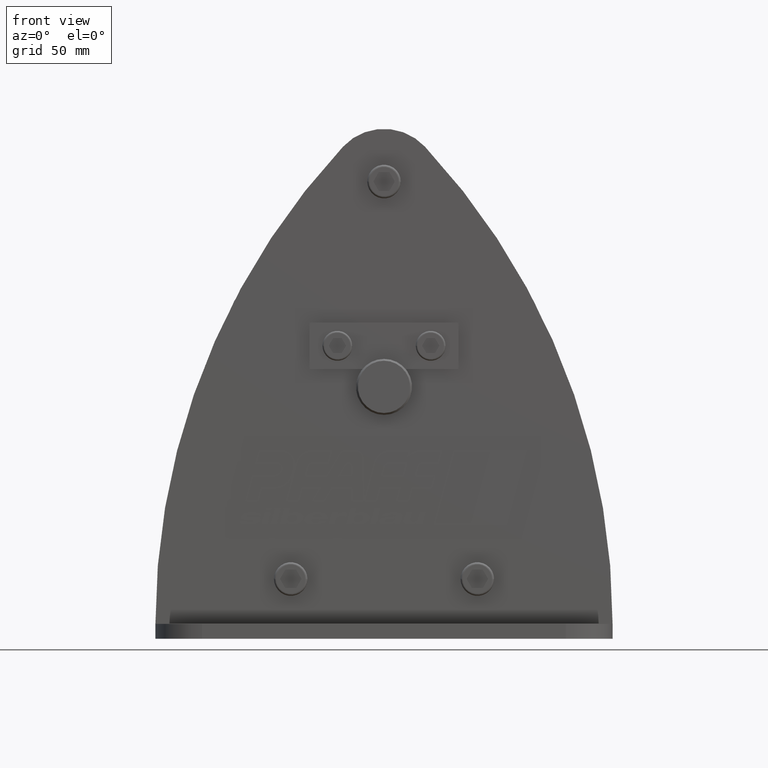
[diagram: clean part render]
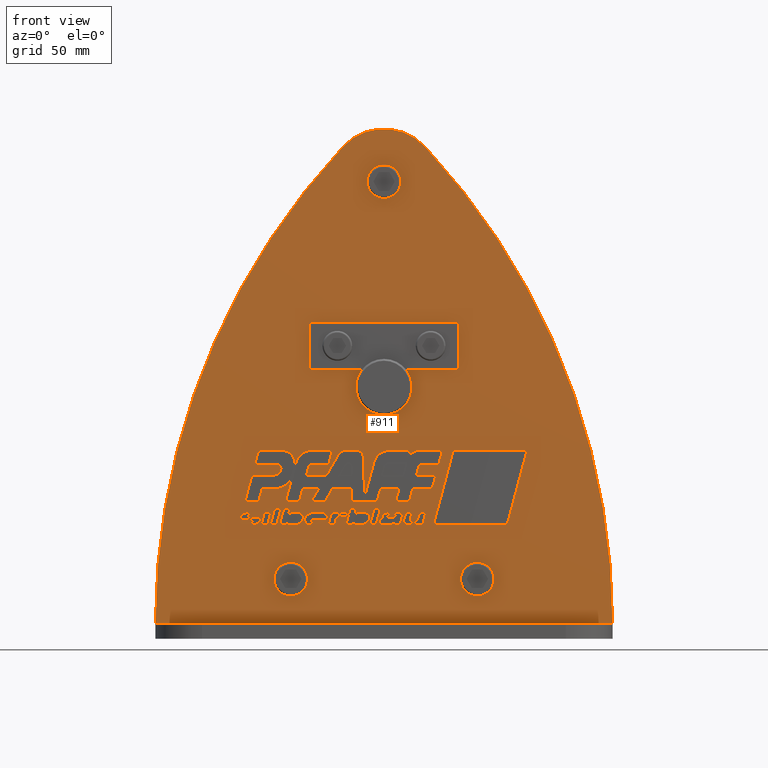
[diagram: same view with one face highlighted and labeled with its STEP entity id]
A machine part, front view. The second image highlights one B-rep face of the part: STEP entity #911.
In plain terms, the highlighted planar face has unit normal (0, -1, 0).
Its self-contained STEP definition (entity closure, byte-faithful):
#911=ADVANCED_FACE('',(#2368,#2369,#2370,#2371,#2372,#2373,#2374,#2375,#2376,#2377,#2378,#2379,#2380,#2381,#2382,#2383,#2384,#2385,#2386),#2387,.T.);
#2368=FACE_BOUND('',#4454,.T.);
#2369=FACE_BOUND('',#4455,.T.);
#2370=FACE_BOUND('',#4456,.T.);
#2371=FACE_BOUND('',#4457,.T.);
#2372=FACE_BOUND('',#4458,.T.);
#2373=FACE_BOUND('',#4459,.T.);
#2374=FACE_BOUND('',#4460,.T.);
#2375=FACE_BOUND('',#4461,.T.);
#2376=FACE_BOUND('',#4462,.T.);
#2377=FACE_BOUND('',#4463,.T.);
#2378=FACE_BOUND('',#4464,.T.);
#2379=FACE_BOUND('',#4465,.T.);
#2380=FACE_BOUND('',#4466,.T.);
#2381=FACE_BOUND('',#4467,.T.);
#2382=FACE_BOUND('',#4468,.T.);
#2383=FACE_BOUND('',#4469,.T.);
#2384=FACE_BOUND('',#4470,.T.);
#2385=FACE_BOUND('',#4471,.T.);
#2386=FACE_OUTER_BOUND('',#4472,.T.);
#2387=PLANE('',#4473);
#4454=EDGE_LOOP('',(#7290,#7291,#7292,#7293));
#4455=EDGE_LOOP('',(#7294,#7295,#7296,#7297));
#4456=EDGE_LOOP('',(#7298,#7299,#7300,#7301));
#4457=EDGE_LOOP('',(#7302,#7303,#7304,#7305));
#4458=EDGE_LOOP('',(#7306,#7307,#7308,#7309));
#4459=EDGE_LOOP('',(#7310,#7311,#7312,#7313,#7314,#7315,#7316,#7317,#7318));
#4460=EDGE_LOOP('',(#7319,#7320,#7321,#7322,#7323,#7324,#7325,#7326,#7327,#7328,#7329,#7330,#7331,#7332,#7333));
#4461=EDGE_LOOP('',(#7334,#7335,#7336,#7337,#7338,#7339,#7340,#7341,#7342,#7343,#7344,#7345,#7346,#7347,#7348,#7349,#7350,#7351,#7352,#7353));
#4462=EDGE_LOOP('',(#7354,#7355,#7356,#7357,#7358,#7359,#7360,#7361,#7362,#7363));
#4463=EDGE_LOOP('',(#7364,#7365,#7366,#7367,#7368,#7369,#7370,#7371,#7372,#7373,#7374,#7375,#7376,#7377,#7378,#7379,#7380));
#4464=EDGE_LOOP('',(#7381,#7382,#7383,#7384,#7385,#7386,#7387,#7388,#7389,#7390,#7391,#7392));
#4465=EDGE_LOOP('',(#7393,#7394,#7395,#7396,#7397,#7398,#7399,#7400,#7401,#7402,#7403,#7404));
#4466=EDGE_LOOP('',(#7405,#7406,#7407,#7408,#7409,#7410,#7411,#7412,#7413,#7414,#7415,#7416,#7417,#7418,#7419,#7420,#7421,#7422,#7423,#7424,#7425,#7426,#7427,#7428,#7429,#7430,#7431,#7432,#7433,#7434,#7435,#7436,#7437,#7438,#7439,#7440,#7441,#7442,#7443,#7444,#7445,#7446,#7447,#7448,#7449,#7450,#7451,#7452,#7453,#7454,#7455,#7456,#7457,#7458));
#4467=EDGE_LOOP('',(#7459,#7460));
#4468=EDGE_LOOP('',(#7461,#7462));
#4469=EDGE_LOOP('',(#7463,#7464));
#4470=EDGE_LOOP('',(#7465,#7466,#7467,#7468));
#4471=EDGE_LOOP('',(#7469,#7470,#7471));
#4472=EDGE_LOOP('',(#7472,#7473,#7474,#7475));
#4473=AXIS2_PLACEMENT_3D('',#7476,#7477,#7478);
#7290=ORIENTED_EDGE('',*,*,#12973,.T.);
#7291=ORIENTED_EDGE('',*,*,#12978,.T.);
#7292=ORIENTED_EDGE('',*,*,#12982,.T.);
#7293=ORIENTED_EDGE('',*,*,#12985,.T.);
#7294=ORIENTED_EDGE('',*,*,#12988,.T.);
#7295=ORIENTED_EDGE('',*,*,#12989,.T.);
#7296=ORIENTED_EDGE('',*,*,#12990,.T.);
#7297=ORIENTED_EDGE('',*,*,#12991,.T.);
#7298=ORIENTED_EDGE('',*,*,#12992,.T.);
#7299=ORIENTED_EDGE('',*,*,#12993,.T.);
#7300=ORIENTED_EDGE('',*,*,#12994,.T.);
#7301=ORIENTED_EDGE('',*,*,#12995,.T.);
#7302=ORIENTED_EDGE('',*,*,#12996,.T.);
#7303=ORIENTED_EDGE('',*,*,#12997,.T.);
#7304=ORIENTED_EDGE('',*,*,#12998,.T.);
#7305=ORIENTED_EDGE('',*,*,#12999,.T.);
#7306=ORIENTED_EDGE('',*,*,#13000,.T.);
#7307=ORIENTED_EDGE('',*,*,#13001,.T.);
#7308=ORIENTED_EDGE('',*,*,#13002,.T.);
#7309=ORIENTED_EDGE('',*,*,#13003,.T.);
#7310=ORIENTED_EDGE('',*,*,#13004,.T.);
#7311=ORIENTED_EDGE('',*,*,#13005,.T.);
#7312=ORIENTED_EDGE('',*,*,#13006,.T.);
#7313=ORIENTED_EDGE('',*,*,#13007,.T.);
#7314=ORIENTED_EDGE('',*,*,#13008,.T.);
#7315=ORIENTED_EDGE('',*,*,#13009,.T.);
#7316=ORIENTED_EDGE('',*,*,#13010,.T.);
#7317=ORIENTED_EDGE('',*,*,#13011,.T.);
#7318=ORIENTED_EDGE('',*,*,#13012,.T.);
#7319=ORIENTED_EDGE('',*,*,#13013,.T.);
#7320=ORIENTED_EDGE('',*,*,#13014,.T.);
#7321=ORIENTED_EDGE('',*,*,#13015,.T.);
#7322=ORIENTED_EDGE('',*,*,#13016,.T.);
#7323=ORIENTED_EDGE('',*,*,#13017,.T.);
#7324=ORIENTED_EDGE('',*,*,#13018,.T.);
#7325=ORIENTED_EDGE('',*,*,#13019,.T.);
#7326=ORIENTED_EDGE('',*,*,#13020,.T.);
#7327=ORIENTED_EDGE('',*,*,#13021,.T.);
#7328=ORIENTED_EDGE('',*,*,#13022,.T.);
#7329=ORIENTED_EDGE('',*,*,#13023,.T.);
#7330=ORIENTED_EDGE('',*,*,#13024,.T.);
#7331=ORIENTED_EDGE('',*,*,#13025,.T.);
#7332=ORIENTED_EDGE('',*,*,#13026,.T.);
#7333=ORIENTED_EDGE('',*,*,#13027,.T.);
#7334=ORIENTED_EDGE('',*,*,#13028,.T.);
#7335=ORIENTED_EDGE('',*,*,#13029,.T.);
#7336=ORIENTED_EDGE('',*,*,#13030,.T.);
#7337=ORIENTED_EDGE('',*,*,#13031,.T.);
#7338=ORIENTED_EDGE('',*,*,#13032,.T.);
#7339=ORIENTED_EDGE('',*,*,#13033,.T.);
#7340=ORIENTED_EDGE('',*,*,#13034,.T.);
#7341=ORIENTED_EDGE('',*,*,#13035,.T.);
#7342=ORIENTED_EDGE('',*,*,#13036,.T.);
#7343=ORIENTED_EDGE('',*,*,#13037,.T.);
#7344=ORIENTED_EDGE('',*,*,#13038,.T.);
#7345=ORIENTED_EDGE('',*,*,#13039,.T.);
#7346=ORIENTED_EDGE('',*,*,#13040,.T.);
#7347=ORIENTED_EDGE('',*,*,#13041,.T.);
#7348=ORIENTED_EDGE('',*,*,#13042,.T.);
#7349=ORIENTED_EDGE('',*,*,#13043,.T.);
#7350=ORIENTED_EDGE('',*,*,#13044,.T.);
#7351=ORIENTED_EDGE('',*,*,#13045,.T.);
#7352=ORIENTED_EDGE('',*,*,#13046,.T.);
#7353=ORIENTED_EDGE('',*,*,#13047,.T.);
#7354=ORIENTED_EDGE('',*,*,#13048,.T.);
#7355=ORIENTED_EDGE('',*,*,#13049,.T.);
#7356=ORIENTED_EDGE('',*,*,#13050,.T.);
#7357=ORIENTED_EDGE('',*,*,#13051,.T.);
#7358=ORIENTED_EDGE('',*,*,#13052,.T.);
#7359=ORIENTED_EDGE('',*,*,#13053,.T.);
#7360=ORIENTED_EDGE('',*,*,#13054,.T.);
#7361=ORIENTED_EDGE('',*,*,#13055,.T.);
#7362=ORIENTED_EDGE('',*,*,#13056,.T.);
#7363=ORIENTED_EDGE('',*,*,#13057,.T.);
#7364=ORIENTED_EDGE('',*,*,#13058,.T.);
#7365=ORIENTED_EDGE('',*,*,#13059,.T.);
#7366=ORIENTED_EDGE('',*,*,#13060,.T.);
#7367=ORIENTED_EDGE('',*,*,#13061,.T.);
#7368=ORIENTED_EDGE('',*,*,#13062,.T.);
#7369=ORIENTED_EDGE('',*,*,#13063,.T.);
#7370=ORIENTED_EDGE('',*,*,#13064,.T.);
#7371=ORIENTED_EDGE('',*,*,#13065,.T.);
#7372=ORIENTED_EDGE('',*,*,#13066,.T.);
#7373=ORIENTED_EDGE('',*,*,#13067,.T.);
#7374=ORIENTED_EDGE('',*,*,#13068,.T.);
#7375=ORIENTED_EDGE('',*,*,#13069,.T.);
#7376=ORIENTED_EDGE('',*,*,#13070,.T.);
#7377=ORIENTED_EDGE('',*,*,#13071,.T.);
#7378=ORIENTED_EDGE('',*,*,#13072,.T.);
#7379=ORIENTED_EDGE('',*,*,#13073,.T.);
#7380=ORIENTED_EDGE('',*,*,#13074,.T.);
#7381=ORIENTED_EDGE('',*,*,#13075,.T.);
#7382=ORIENTED_EDGE('',*,*,#13076,.T.);
#7383=ORIENTED_EDGE('',*,*,#13077,.T.);
#7384=ORIENTED_EDGE('',*,*,#13078,.T.);
#7385=ORIENTED_EDGE('',*,*,#13079,.T.);
#7386=ORIENTED_EDGE('',*,*,#13080,.T.);
#7387=ORIENTED_EDGE('',*,*,#13081,.T.);
#7388=ORIENTED_EDGE('',*,*,#13082,.T.);
#7389=ORIENTED_EDGE('',*,*,#13083,.T.);
#7390=ORIENTED_EDGE('',*,*,#13084,.T.);
#7391=ORIENTED_EDGE('',*,*,#13085,.T.);
#7392=ORIENTED_EDGE('',*,*,#13086,.T.);
#7393=ORIENTED_EDGE('',*,*,#13087,.T.);
#7394=ORIENTED_EDGE('',*,*,#13088,.T.);
#7395=ORIENTED_EDGE('',*,*,#13089,.T.);
#7396=ORIENTED_EDGE('',*,*,#13090,.T.);
#7397=ORIENTED_EDGE('',*,*,#13091,.T.);
#7398=ORIENTED_EDGE('',*,*,#13092,.T.);
#7399=ORIENTED_EDGE('',*,*,#13093,.T.);
#7400=ORIENTED_EDGE('',*,*,#13094,.T.);
#7401=ORIENTED_EDGE('',*,*,#13095,.T.);
#7402=ORIENTED_EDGE('',*,*,#13096,.T.);
#7403=ORIENTED_EDGE('',*,*,#13097,.T.);
#7404=ORIENTED_EDGE('',*,*,#13098,.T.);
#7405=ORIENTED_EDGE('',*,*,#13099,.T.);
#7406=ORIENTED_EDGE('',*,*,#13100,.T.);
#7407=ORIENTED_EDGE('',*,*,#13101,.T.);
#7408=ORIENTED_EDGE('',*,*,#13102,.T.);
#7409=ORIENTED_EDGE('',*,*,#13103,.T.);
#7410=ORIENTED_EDGE('',*,*,#13104,.T.);
#7411=ORIENTED_EDGE('',*,*,#13105,.T.);
#7412=ORIENTED_EDGE('',*,*,#13106,.T.);
#7413=ORIENTED_EDGE('',*,*,#13107,.T.);
#7414=ORIENTED_EDGE('',*,*,#13108,.T.);
#7415=ORIENTED_EDGE('',*,*,#13109,.T.);
#7416=ORIENTED_EDGE('',*,*,#13110,.T.);
#7417=ORIENTED_EDGE('',*,*,#13111,.T.);
#7418=ORIENTED_EDGE('',*,*,#13112,.T.);
#7419=ORIENTED_EDGE('',*,*,#13113,.T.);
#7420=ORIENTED_EDGE('',*,*,#13114,.T.);
#7421=ORIENTED_EDGE('',*,*,#13115,.T.);
#7422=ORIENTED_EDGE('',*,*,#13116,.T.);
#7423=ORIENTED_EDGE('',*,*,#13117,.T.);
#7424=ORIENTED_EDGE('',*,*,#13118,.T.);
#7425=ORIENTED_EDGE('',*,*,#13119,.T.);
#7426=ORIENTED_EDGE('',*,*,#13120,.T.);
#7427=ORIENTED_EDGE('',*,*,#13121,.T.);
#7428=ORIENTED_EDGE('',*,*,#13122,.T.);
#7429=ORIENTED_EDGE('',*,*,#13123,.T.);
#7430=ORIENTED_EDGE('',*,*,#13124,.T.);
#7431=ORIENTED_EDGE('',*,*,#13125,.T.);
#7432=ORIENTED_EDGE('',*,*,#13126,.T.);
#7433=ORIENTED_EDGE('',*,*,#13127,.T.);
#7434=ORIENTED_EDGE('',*,*,#13128,.T.);
#7435=ORIENTED_EDGE('',*,*,#13129,.T.);
#7436=ORIENTED_EDGE('',*,*,#13130,.T.);
#7437=ORIENTED_EDGE('',*,*,#13131,.T.);
#7438=ORIENTED_EDGE('',*,*,#13132,.T.);
#7439=ORIENTED_EDGE('',*,*,#13133,.T.);
#7440=ORIENTED_EDGE('',*,*,#13134,.T.);
#7441=ORIENTED_EDGE('',*,*,#13135,.T.);
#7442=ORIENTED_EDGE('',*,*,#13136,.T.);
#7443=ORIENTED_EDGE('',*,*,#13137,.T.);
#7444=ORIENTED_EDGE('',*,*,#13138,.T.);
#7445=ORIENTED_EDGE('',*,*,#13139,.T.);
#7446=ORIENTED_EDGE('',*,*,#13140,.T.);
#7447=ORIENTED_EDGE('',*,*,#13141,.T.);
#7448=ORIENTED_EDGE('',*,*,#13142,.T.);
#7449=ORIENTED_EDGE('',*,*,#13143,.T.);
#7450=ORIENTED_EDGE('',*,*,#13144,.T.);
#7451=ORIENTED_EDGE('',*,*,#13145,.T.);
#7452=ORIENTED_EDGE('',*,*,#13146,.T.);
#7453=ORIENTED_EDGE('',*,*,#13147,.T.);
#7454=ORIENTED_EDGE('',*,*,#13148,.T.);
#7455=ORIENTED_EDGE('',*,*,#13149,.T.);
#7456=ORIENTED_EDGE('',*,*,#13150,.T.);
#7457=ORIENTED_EDGE('',*,*,#13151,.T.);
#7458=ORIENTED_EDGE('',*,*,#13152,.T.);
#7459=ORIENTED_EDGE('',*,*,#12467,.T.);
#7460=ORIENTED_EDGE('',*,*,#13153,.T.);
#7461=ORIENTED_EDGE('',*,*,#12476,.T.);
#7462=ORIENTED_EDGE('',*,*,#13154,.T.);
#7463=ORIENTED_EDGE('',*,*,#12485,.T.);
#7464=ORIENTED_EDGE('',*,*,#13155,.T.);
#7465=ORIENTED_EDGE('',*,*,#13156,.T.);
#7466=ORIENTED_EDGE('',*,*,#13157,.T.);
#7467=ORIENTED_EDGE('',*,*,#13158,.T.);
#7468=ORIENTED_EDGE('',*,*,#13159,.T.);
#7469=ORIENTED_EDGE('',*,*,#13160,.T.);
#7470=ORIENTED_EDGE('',*,*,#12514,.T.);
#7471=ORIENTED_EDGE('',*,*,#13161,.T.);
#7472=ORIENTED_EDGE('',*,*,#13162,.T.);
#7473=ORIENTED_EDGE('',*,*,#13163,.F.);
#7474=ORIENTED_EDGE('',*,*,#13164,.F.);
#7475=ORIENTED_EDGE('',*,*,#13165,.F.);
#7476=CARTESIAN_POINT('',(2.92292278416539E-005,-29.5,-28.4681245642744));
#7477=DIRECTION('',(0.0,-1.0,0.0));
#7478=DIRECTION('',(1.0,0.0,0.0));
#12467=EDGE_CURVE('',#14974,#14976,#14978,.T.);
#12476=EDGE_CURVE('',#14989,#14991,#14993,.T.);
#12485=EDGE_CURVE('',#15004,#15006,#15008,.T.);
#12514=EDGE_CURVE('',#15051,#15059,#15061,.T.);
#12973=EDGE_CURVE('',#15817,#15815,#15818,.T.);
#12978=EDGE_CURVE('',#15815,#15823,#15825,.T.);
#12982=EDGE_CURVE('',#15823,#15829,#15831,.T.);
#12985=EDGE_CURVE('',#15829,#15817,#15834,.T.);
#12988=EDGE_CURVE('',#15837,#15838,#15839,.T.);
#12989=EDGE_CURVE('',#15838,#15840,#15841,.T.);
#12990=EDGE_CURVE('',#15840,#15842,#15843,.T.);
#12991=EDGE_CURVE('',#15842,#15837,#15844,.T.);
#12992=EDGE_CURVE('',#15845,#15846,#15847,.T.);
#12993=EDGE_CURVE('',#15846,#15848,#15849,.T.);
#12994=EDGE_CURVE('',#15848,#15850,#15851,.T.);
#12995=EDGE_CURVE('',#15850,#15845,#15852,.T.);
#12996=EDGE_CURVE('',#15853,#15854,#15855,.T.);
#12997=EDGE_CURVE('',#15854,#15856,#15857,.T.);
#12998=EDGE_CURVE('',#15856,#15858,#15859,.T.);
#12999=EDGE_CURVE('',#15858,#15853,#15860,.T.);
#13000=EDGE_CURVE('',#15861,#15862,#15863,.T.);
#13001=EDGE_CURVE('',#15862,#15864,#15865,.T.);
#13002=EDGE_CURVE('',#15864,#15866,#15867,.T.);
#13003=EDGE_CURVE('',#15866,#15861,#15868,.T.);
#13004=EDGE_CURVE('',#15869,#15870,#15871,.T.);
#13005=EDGE_CURVE('',#15870,#15872,#15873,.T.);
#13006=EDGE_CURVE('',#15872,#15874,#15875,.T.);
#13007=EDGE_CURVE('',#15874,#15876,#15877,.T.);
#13008=EDGE_CURVE('',#15876,#15878,#15879,.T.);
#13009=EDGE_CURVE('',#15878,#15880,#15881,.T.);
#13010=EDGE_CURVE('',#15880,#15882,#15883,.T.);
#13011=EDGE_CURVE('',#15882,#15884,#15885,.T.);
#13012=EDGE_CURVE('',#15884,#15869,#15886,.T.);
#13013=EDGE_CURVE('',#15887,#15888,#15889,.T.);
#13014=EDGE_CURVE('',#15888,#15890,#15891,.T.);
#13015=EDGE_CURVE('',#15890,#15892,#15893,.T.);
#13016=EDGE_CURVE('',#15892,#15894,#15895,.T.);
#13017=EDGE_CURVE('',#15894,#15896,#15897,.T.);
#13018=EDGE_CURVE('',#15896,#15898,#15899,.T.);
#13019=EDGE_CURVE('',#15898,#15900,#15901,.T.);
#13020=EDGE_CURVE('',#15900,#15902,#15903,.T.);
#13021=EDGE_CURVE('',#15902,#15904,#15905,.T.);
#13022=EDGE_CURVE('',#15904,#15906,#15907,.T.);
#13023=EDGE_CURVE('',#15906,#15908,#15909,.T.);
#13024=EDGE_CURVE('',#15908,#15910,#15911,.T.);
#13025=EDGE_CURVE('',#15910,#15912,#15913,.T.);
#13026=EDGE_CURVE('',#15912,#15914,#15915,.T.);
#13027=EDGE_CURVE('',#15914,#15887,#15916,.T.);
#13028=EDGE_CURVE('',#15917,#15918,#15919,.T.);
#13029=EDGE_CURVE('',#15918,#15920,#15921,.T.);
#13030=EDGE_CURVE('',#15920,#15922,#15923,.T.);
#13031=EDGE_CURVE('',#15922,#15924,#15925,.T.);
#13032=EDGE_CURVE('',#15924,#15926,#15927,.T.);
#13033=EDGE_CURVE('',#15926,#15928,#15929,.T.);
#13034=EDGE_CURVE('',#15928,#15930,#15931,.T.);
#13035=EDGE_CURVE('',#15930,#15932,#15933,.T.);
#13036=EDGE_CURVE('',#15932,#15934,#15935,.T.);
#13037=EDGE_CURVE('',#15934,#15936,#15937,.T.);
#13038=EDGE_CURVE('',#15936,#15938,#15939,.T.);
#13039=EDGE_CURVE('',#15938,#15940,#15941,.T.);
#13040=EDGE_CURVE('',#15940,#15942,#15943,.T.);
#13041=EDGE_CURVE('',#15942,#15944,#15945,.T.);
#13042=EDGE_CURVE('',#15944,#15946,#15947,.T.);
#13043=EDGE_CURVE('',#15946,#15948,#15949,.T.);
#13044=EDGE_CURVE('',#15948,#15950,#15951,.T.);
#13045=EDGE_CURVE('',#15950,#15952,#15953,.T.);
#13046=EDGE_CURVE('',#15952,#15954,#15955,.T.);
#13047=EDGE_CURVE('',#15954,#15917,#15956,.T.);
#13048=EDGE_CURVE('',#15957,#15958,#15959,.T.);
#13049=EDGE_CURVE('',#15958,#15960,#15961,.T.);
#13050=EDGE_CURVE('',#15960,#15962,#15963,.T.);
#13051=EDGE_CURVE('',#15962,#15964,#15965,.T.);
#13052=EDGE_CURVE('',#15964,#15966,#15967,.T.);
#13053=EDGE_CURVE('',#15966,#15968,#15969,.T.);
#13054=EDGE_CURVE('',#15968,#15970,#15971,.T.);
#13055=EDGE_CURVE('',#15970,#15972,#15973,.T.);
#13056=EDGE_CURVE('',#15972,#15974,#15975,.T.);
#13057=EDGE_CURVE('',#15974,#15957,#15976,.T.);
#13058=EDGE_CURVE('',#15977,#15978,#15979,.T.);
#13059=EDGE_CURVE('',#15978,#15980,#15981,.T.);
#13060=EDGE_CURVE('',#15980,#15982,#15983,.T.);
#13061=EDGE_CURVE('',#15982,#15984,#15985,.T.);
#13062=EDGE_CURVE('',#15984,#15986,#15987,.T.);
#13063=EDGE_CURVE('',#15986,#15988,#15989,.T.);
#13064=EDGE_CURVE('',#15988,#15990,#15991,.T.);
#13065=EDGE_CURVE('',#15990,#15992,#15993,.T.);
#13066=EDGE_CURVE('',#15992,#15994,#15995,.T.);
#13067=EDGE_CURVE('',#15994,#15996,#15997,.T.);
#13068=EDGE_CURVE('',#15996,#15998,#15999,.T.);
#13069=EDGE_CURVE('',#15998,#16000,#16001,.T.);
#13070=EDGE_CURVE('',#16000,#16002,#16003,.T.);
#13071=EDGE_CURVE('',#16002,#16004,#16005,.T.);
#13072=EDGE_CURVE('',#16004,#16006,#16007,.T.);
#13073=EDGE_CURVE('',#16006,#16008,#16009,.T.);
#13074=EDGE_CURVE('',#16008,#15977,#16010,.T.);
#13075=EDGE_CURVE('',#16011,#16012,#16013,.T.);
#13076=EDGE_CURVE('',#16012,#16014,#16015,.T.);
#13077=EDGE_CURVE('',#16014,#16016,#16017,.T.);
#13078=EDGE_CURVE('',#16016,#16018,#16019,.T.);
#13079=EDGE_CURVE('',#16018,#16020,#16021,.T.);
#13080=EDGE_CURVE('',#16020,#16022,#16023,.T.);
#13081=EDGE_CURVE('',#16022,#16024,#16025,.T.);
#13082=EDGE_CURVE('',#16024,#16026,#16027,.T.);
#13083=EDGE_CURVE('',#16026,#16028,#16029,.T.);
#13084=EDGE_CURVE('',#16028,#16030,#16031,.T.);
#13085=EDGE_CURVE('',#16030,#16032,#16033,.T.);
#13086=EDGE_CURVE('',#16032,#16011,#16034,.T.);
#13087=EDGE_CURVE('',#16035,#16036,#16037,.T.);
#13088=EDGE_CURVE('',#16036,#16038,#16039,.T.);
#13089=EDGE_CURVE('',#16038,#16040,#16041,.T.);
#13090=EDGE_CURVE('',#16040,#16042,#16043,.T.);
#13091=EDGE_CURVE('',#16042,#16044,#16045,.T.);
#13092=EDGE_CURVE('',#16044,#16046,#16047,.T.);
#13093=EDGE_CURVE('',#16046,#16048,#16049,.T.);
#13094=EDGE_CURVE('',#16048,#16050,#16051,.T.);
#13095=EDGE_CURVE('',#16050,#16052,#16053,.T.);
#13096=EDGE_CURVE('',#16052,#16054,#16055,.T.);
#13097=EDGE_CURVE('',#16054,#16056,#16057,.T.);
#13098=EDGE_CURVE('',#16056,#16035,#16058,.T.);
#13099=EDGE_CURVE('',#16059,#16060,#16061,.T.);
#13100=EDGE_CURVE('',#16060,#16062,#16063,.T.);
#13101=EDGE_CURVE('',#16062,#16064,#16065,.T.);
#13102=EDGE_CURVE('',#16064,#16066,#16067,.T.);
#13103=EDGE_CURVE('',#16066,#16068,#16069,.T.);
#13104=EDGE_CURVE('',#16068,#16070,#16071,.T.);
#13105=EDGE_CURVE('',#16070,#16072,#16073,.T.);
#13106=EDGE_CURVE('',#16072,#16074,#16075,.T.);
#13107=EDGE_CURVE('',#16074,#16076,#16077,.T.);
#13108=EDGE_CURVE('',#16076,#16078,#16079,.T.);
#13109=EDGE_CURVE('',#16078,#16080,#16081,.T.);
#13110=EDGE_CURVE('',#16080,#16082,#16083,.T.);
#13111=EDGE_CURVE('',#16082,#16084,#16085,.T.);
#13112=EDGE_CURVE('',#16084,#16086,#16087,.T.);
#13113=EDGE_CURVE('',#16086,#16088,#16089,.T.);
#13114=EDGE_CURVE('',#16088,#16090,#16091,.T.);
#13115=EDGE_CURVE('',#16090,#16092,#16093,.T.);
#13116=EDGE_CURVE('',#16092,#16094,#16095,.T.);
#13117=EDGE_CURVE('',#16094,#16096,#16097,.T.);
#13118=EDGE_CURVE('',#16096,#16098,#16099,.T.);
#13119=EDGE_CURVE('',#16098,#16100,#16101,.T.);
#13120=EDGE_CURVE('',#16100,#16102,#16103,.T.);
#13121=EDGE_CURVE('',#16102,#16104,#16105,.T.);
#13122=EDGE_CURVE('',#16104,#16106,#16107,.T.);
#13123=EDGE_CURVE('',#16106,#16108,#16109,.T.);
#13124=EDGE_CURVE('',#16108,#16110,#16111,.T.);
#13125=EDGE_CURVE('',#16110,#16112,#16113,.T.);
#13126=EDGE_CURVE('',#16112,#16114,#16115,.T.);
#13127=EDGE_CURVE('',#16114,#16116,#16117,.T.);
#13128=EDGE_CURVE('',#16116,#16118,#16119,.T.);
#13129=EDGE_CURVE('',#16118,#16120,#16121,.T.);
#13130=EDGE_CURVE('',#16120,#16122,#16123,.T.);
#13131=EDGE_CURVE('',#16122,#16124,#16125,.T.);
#13132=EDGE_CURVE('',#16124,#16126,#16127,.T.);
#13133=EDGE_CURVE('',#16126,#16128,#16129,.T.);
#13134=EDGE_CURVE('',#16128,#16130,#16131,.T.);
#13135=EDGE_CURVE('',#16130,#16132,#16133,.T.);
#13136=EDGE_CURVE('',#16132,#16134,#16135,.T.);
#13137=EDGE_CURVE('',#16134,#16136,#16137,.T.);
#13138=EDGE_CURVE('',#16136,#16138,#16139,.T.);
#13139=EDGE_CURVE('',#16138,#16140,#16141,.T.);
#13140=EDGE_CURVE('',#16140,#16142,#16143,.T.);
#13141=EDGE_CURVE('',#16142,#16144,#16145,.T.);
#13142=EDGE_CURVE('',#16144,#16146,#16147,.T.);
#13143=EDGE_CURVE('',#16146,#16148,#16149,.T.);
#13144=EDGE_CURVE('',#16148,#16150,#16151,.T.);
#13145=EDGE_CURVE('',#16150,#16152,#16153,.T.);
#13146=EDGE_CURVE('',#16152,#16154,#16155,.T.);
#13147=EDGE_CURVE('',#16154,#16156,#16157,.T.);
#13148=EDGE_CURVE('',#16156,#16158,#16159,.T.);
#13149=EDGE_CURVE('',#16158,#16160,#16161,.T.);
#13150=EDGE_CURVE('',#16160,#16162,#16163,.T.);
#13151=EDGE_CURVE('',#16162,#16164,#16165,.T.);
#13152=EDGE_CURVE('',#16164,#16059,#16166,.T.);
#13153=EDGE_CURVE('',#14976,#14974,#16167,.T.);
#13154=EDGE_CURVE('',#14991,#14989,#16168,.T.);
#13155=EDGE_CURVE('',#15006,#15004,#16169,.T.);
#13156=EDGE_CURVE('',#16170,#16171,#16172,.T.);
#13157=EDGE_CURVE('',#16171,#16173,#16174,.T.);
#13158=EDGE_CURVE('',#16173,#16175,#16176,.T.);
#13159=EDGE_CURVE('',#16175,#16170,#16177,.T.);
#13160=EDGE_CURVE('',#16178,#15051,#16179,.T.);
#13161=EDGE_CURVE('',#15059,#16178,#16180,.T.);
#13162=EDGE_CURVE('',#16181,#16182,#16183,.T.);
#13163=EDGE_CURVE('',#16184,#16182,#16185,.T.);
#13164=EDGE_CURVE('',#16186,#16184,#16187,.T.);
#13165=EDGE_CURVE('',#16181,#16186,#16188,.T.);
#14974=VERTEX_POINT('',#19642);
#14976=VERTEX_POINT('',#19645);
#14978=CIRCLE('',#19648,9.0);
#14989=VERTEX_POINT('',#19659);
#14991=VERTEX_POINT('',#19662);
#14993=CIRCLE('',#19665,9.0);
#15004=VERTEX_POINT('',#19676);
#15006=VERTEX_POINT('',#19679);
#15008=CIRCLE('',#19682,9.0);
#15051=VERTEX_POINT('',#19733);
#15059=VERTEX_POINT('',#19743);
#15061=CIRCLE('',#19746,15.0);
#15815=VERTEX_POINT('',#22455);
#15817=VERTEX_POINT('',#22458);
#15818=LINE('',#22459,#22460);
#15823=VERTEX_POINT('',#22467);
#15825=LINE('',#22470,#22471);
#15829=VERTEX_POINT('',#22476);
#15831=LINE('',#22479,#22480);
#15834=LINE('',#22484,#22485);
#15837=VERTEX_POINT('',#22488);
#15838=VERTEX_POINT('',#22489);
#15839=LINE('',#22490,#22491);
#15840=VERTEX_POINT('',#22492);
#15841=LINE('',#22493,#22494);
#15842=VERTEX_POINT('',#22495);
#15843=LINE('',#22496,#22497);
#15844=LINE('',#22498,#22499);
#15845=VERTEX_POINT('',#22500);
#15846=VERTEX_POINT('',#22501);
#15847=LINE('',#22502,#22503);
#15848=VERTEX_POINT('',#22504);
#15849=LINE('',#22505,#22506);
#15850=VERTEX_POINT('',#22507);
#15851=LINE('',#22508,#22509);
#15852=LINE('',#22510,#22511);
#15853=VERTEX_POINT('',#22512);
#15854=VERTEX_POINT('',#22513);
#15855=LINE('',#22514,#22515);
#15856=VERTEX_POINT('',#22516);
#15857=LINE('',#22517,#22518);
#15858=VERTEX_POINT('',#22519);
#15859=LINE('',#22520,#22521);
#15860=LINE('',#22522,#22523);
#15861=VERTEX_POINT('',#22524);
#15862=VERTEX_POINT('',#22525);
#15863=LINE('',#22526,#22527);
#15864=VERTEX_POINT('',#22528);
#15865=LINE('',#22529,#22530);
#15866=VERTEX_POINT('',#22531);
#15867=LINE('',#22532,#22533);
#15868=LINE('',#22534,#22535);
#15869=VERTEX_POINT('',#22536);
#15870=VERTEX_POINT('',#22537);
#15871=LINE('',#22538,#22539);
#15872=VERTEX_POINT('',#22540);
#15873=CIRCLE('',#22541,5.07867272792507);
#15874=VERTEX_POINT('',#22542);
#15875=CIRCLE('',#22543,1.85572041891489);
#15876=VERTEX_POINT('',#22544);
#15877=LINE('',#22545,#22546);
#15878=VERTEX_POINT('',#22547);
#15879=LINE('',#22548,#22549);
#15880=VERTEX_POINT('',#22550);
#15881=LINE('',#22551,#22552);
#15882=VERTEX_POINT('',#22553);
#15883=LINE('',#22554,#22555);
#15884=VERTEX_POINT('',#22556);
#15885=LINE('',#22557,#22558);
#15886=CIRCLE('',#22559,6.18573464547884);
#15887=VERTEX_POINT('',#22560);
#15888=VERTEX_POINT('',#22561);
#15889=CIRCLE('',#22562,0.927859753900599);
#15890=VERTEX_POINT('',#22563);
#15891=CIRCLE('',#22564,4.63930105512005);
#15892=VERTEX_POINT('',#22565);
#15893=CIRCLE('',#22566,1.85572047396734);
#15894=VERTEX_POINT('',#22567);
#15895=LINE('',#22568,#22569);
#15896=VERTEX_POINT('',#22570);
#15897=LINE('',#22571,#22572);
#15898=VERTEX_POINT('',#22573);
#15899=LINE('',#22574,#22575);
#15900=VERTEX_POINT('',#22576);
#15901=LINE('',#22577,#22578);
#15902=VERTEX_POINT('',#22579);
#15903=LINE('',#22580,#22581);
#15904=VERTEX_POINT('',#22582);
#15905=CIRCLE('',#22583,2.08594516479712);
#15906=VERTEX_POINT('',#22584);
#15907=CIRCLE('',#22585,10.3095576928039);
#15908=VERTEX_POINT('',#22586);
#15909=CIRCLE('',#22587,5.15477880118837);
#15910=VERTEX_POINT('',#22588);
#15911=CIRCLE('',#22589,1.85572030232802);
#15912=VERTEX_POINT('',#22590);
#15913=LINE('',#22591,#22592);
#15914=VERTEX_POINT('',#22593);
#15915=LINE('',#22594,#22595);
#15916=LINE('',#22596,#22597);
#15917=VERTEX_POINT('',#22598);
#15918=VERTEX_POINT('',#22599);
#15919=CIRCLE('',#22600,4.38156202874873);
#15920=VERTEX_POINT('',#22601);
#15921=CIRCLE('',#22602,20.6191154396983);
#15922=VERTEX_POINT('',#22603);
#15923=CIRCLE('',#22604,1.85572038705213);
#15924=VERTEX_POINT('',#22605);
#15925=LINE('',#22606,#22607);
#15926=VERTEX_POINT('',#22608);
#15927=CIRCLE('',#22609,2.06191154152328);
#15928=VERTEX_POINT('',#22610);
#15929=CIRCLE('',#22611,4.12382308149832);
#15930=VERTEX_POINT('',#22612);
#15931=CIRCLE('',#22613,0.360834525662634);
#15932=VERTEX_POINT('',#22614);
#15933=LINE('',#22615,#22616);
#15934=VERTEX_POINT('',#22617);
#15935=CIRCLE('',#22618,10.3095576984963);
#15936=VERTEX_POINT('',#22619);
#15937=CIRCLE('',#22620,1.4845763108815);
#15938=VERTEX_POINT('',#22621);
#15939=CIRCLE('',#22622,4.38156203467111);
#15940=VERTEX_POINT('',#22623);
#15941=CIRCLE('',#22624,16.8855268997632);
#15942=VERTEX_POINT('',#22625);
#15943=CIRCLE('',#22626,20.6191154057411);
#15944=VERTEX_POINT('',#22627);
#15945=CIRCLE('',#22628,1.85572040348212);
#15946=VERTEX_POINT('',#22629);
#15947=LINE('',#22630,#22631);
#15948=VERTEX_POINT('',#22632);
#15949=CIRCLE('',#22633,2.06191154152328);
#15950=VERTEX_POINT('',#22634);
#15951=CIRCLE('',#22635,4.12382308149832);
#15952=VERTEX_POINT('',#22636);
#15953=CIRCLE('',#22637,0.360834525662633);
#15954=VERTEX_POINT('',#22638);
#15955=LINE('',#22639,#22640);
#15956=CIRCLE('',#22641,1.48457630468717);
#15957=VERTEX_POINT('',#22642);
#15958=VERTEX_POINT('',#22643);
#15959=LINE('',#22644,#22645);
#15960=VERTEX_POINT('',#22646);
#15961=CIRCLE('',#22647,1.15467048186752);
#15962=VERTEX_POINT('',#22648);
#15963=CIRCLE('',#22649,4.12382308028584);
#15964=VERTEX_POINT('',#22650);
#15965=LINE('',#22651,#22652);
#15966=VERTEX_POINT('',#22653);
#15967=CIRCLE('',#22654,5.154778869501);
#15968=VERTEX_POINT('',#22655);
#15969=CIRCLE('',#22656,16.4952923559979);
#15970=VERTEX_POINT('',#22657);
#15971=CIRCLE('',#22658,2.57738942037752);
#15972=VERTEX_POINT('',#22659);
#15973=CIRCLE('',#22660,5.36097002622452);
#15974=VERTEX_POINT('',#22661);
#15975=CIRCLE('',#22662,23.288407377095);
#15976=CIRCLE('',#22663,3.05162911982785);
#15977=VERTEX_POINT('',#22664);
#15978=VERTEX_POINT('',#22665);
#15979=CIRCLE('',#22666,1.54643371840603);
#15980=VERTEX_POINT('',#22667);
#15981=LINE('',#22668,#22669);
#15982=VERTEX_POINT('',#22670);
#15983=LINE('',#22671,#22672);
#15984=VERTEX_POINT('',#22673);
#15985=CIRCLE('',#22674,5.15477886);
#15986=VERTEX_POINT('',#22675);
#15987=LINE('',#22676,#22677);
#15988=VERTEX_POINT('',#22678);
#15989=CIRCLE('',#22679,10.309557714716);
#15990=VERTEX_POINT('',#22680);
#15991=CIRCLE('',#22681,1.44333800454437);
#15992=VERTEX_POINT('',#22682);
#15993=CIRCLE('',#22683,2.57738943032342);
#15994=VERTEX_POINT('',#22684);
#15995=LINE('',#22685,#22686);
#15996=VERTEX_POINT('',#22687);
#15997=CIRCLE('',#22688,0.515477902152996);
#15998=VERTEX_POINT('',#22689);
#15999=CIRCLE('',#22690,10.3095576922555);
#16000=VERTEX_POINT('',#22691);
#16001=CIRCLE('',#22692,1.85572040164253);
#16002=VERTEX_POINT('',#22693);
#16003=LINE('',#22694,#22695);
#16004=VERTEX_POINT('',#22696);
#16005=CIRCLE('',#22697,2.57738942504754);
#16006=VERTEX_POINT('',#22698);
#16007=CIRCLE('',#22699,20.6191154004569);
#16008=VERTEX_POINT('',#22700);
#16009=CIRCLE('',#22701,1.54643371840602);
#16010=LINE('',#22702,#22703);
#16011=VERTEX_POINT('',#22704);
#16012=VERTEX_POINT('',#22705);
#16013=LINE('',#22706,#22707);
#16014=VERTEX_POINT('',#22708);
#16015=LINE('',#22709,#22710);
#16016=VERTEX_POINT('',#22711);
#16017=LINE('',#22712,#22713);
#16018=VERTEX_POINT('',#22714);
#16019=CIRCLE('',#22715,5.154778851378);
#16020=VERTEX_POINT('',#22716);
#16021=CIRCLE('',#22717,9.89717541146039);
#16022=VERTEX_POINT('',#22718);
#16023=CIRCLE('',#22719,5.15477886853074);
#16024=VERTEX_POINT('',#22720);
#16025=CIRCLE('',#22721,2.4742938363209);
#16026=VERTEX_POINT('',#22722);
#16027=CIRCLE('',#22723,5.15477886300972);
#16028=VERTEX_POINT('',#22724);
#16029=CIRCLE('',#22725,9.89717541106527);
#16030=VERTEX_POINT('',#22726);
#16031=CIRCLE('',#22727,4.89703992423701);
#16032=VERTEX_POINT('',#22728);
#16033=LINE('',#22729,#22730);
#16034=LINE('',#22731,#22732);
#16035=VERTEX_POINT('',#22733);
#16036=VERTEX_POINT('',#22734);
#16037=CIRCLE('',#22735,5.15477886300972);
#16038=VERTEX_POINT('',#22736);
#16039=CIRCLE('',#22737,9.89717541106527);
#16040=VERTEX_POINT('',#22738);
#16041=CIRCLE('',#22739,4.897039924237);
#16042=VERTEX_POINT('',#22740);
#16043=LINE('',#22741,#22742);
#16044=VERTEX_POINT('',#22743);
#16045=LINE('',#22744,#22745);
#16046=VERTEX_POINT('',#22746);
#16047=LINE('',#22747,#22748);
#16048=VERTEX_POINT('',#22749);
#16049=LINE('',#22750,#22751);
#16050=VERTEX_POINT('',#22752);
#16051=LINE('',#22753,#22754);
#16052=VERTEX_POINT('',#22755);
#16053=CIRCLE('',#22756,5.154778851378);
#16054=VERTEX_POINT('',#22757);
#16055=CIRCLE('',#22758,9.89717540068184);
#16056=VERTEX_POINT('',#22759);
#16057=CIRCLE('',#22760,5.15477886853074);
#16058=CIRCLE('',#22761,2.47429383632088);
#16059=VERTEX_POINT('',#22762);
#16060=VERTEX_POINT('',#22763);
#16061=LINE('',#22764,#22765);
#16062=VERTEX_POINT('',#22766);
#16063=LINE('',#22767,#22768);
#16064=VERTEX_POINT('',#22769);
#16065=CIRCLE('',#22770,3.5052496248);
#16066=VERTEX_POINT('',#22771);
#16067=LINE('',#22772,#22773);
#16068=VERTEX_POINT('',#22774);
#16069=CIRCLE('',#22775,2.10314977488);
#16070=VERTEX_POINT('',#22776);
#16071=LINE('',#22777,#22778);
#16072=VERTEX_POINT('',#22779);
#16073=LINE('',#22780,#22781);
#16074=VERTEX_POINT('',#22782);
#16075=LINE('',#22783,#22784);
#16076=VERTEX_POINT('',#22785);
#16077=CIRCLE('',#22786,7.21669041037927);
#16078=VERTEX_POINT('',#22787);
#16079=LINE('',#22788,#22789);
#16080=VERTEX_POINT('',#22790);
#16081=CIRCLE('',#22791,8.8662196392);
#16082=VERTEX_POINT('',#22792);
#16083=LINE('',#22793,#22794);
#16084=VERTEX_POINT('',#22795);
#16085=LINE('',#22796,#22797);
#16086=VERTEX_POINT('',#22798);
#16087=LINE('',#22799,#22800);
#16088=VERTEX_POINT('',#22801);
#16089=CIRCLE('',#22802,2.10314977488);
#16090=VERTEX_POINT('',#22803);
#16091=LINE('',#22804,#22805);
#16092=VERTEX_POINT('',#22806);
#16093=LINE('',#22807,#22808);
#16094=VERTEX_POINT('',#22809);
#16095=LINE('',#22810,#22811);
#16096=VERTEX_POINT('',#22812);
#16097=CIRCLE('',#22813,3.9176319336);
#16098=VERTEX_POINT('',#22814);
#16099=LINE('',#22815,#22816);
#16100=VERTEX_POINT('',#22817);
#16101=CIRCLE('',#22818,3.91763190932938);
#16102=VERTEX_POINT('',#22819);
#16103=LINE('',#22820,#22821);
#16104=VERTEX_POINT('',#22822);
#16105=LINE('',#22823,#22824);
#16106=VERTEX_POINT('',#22825);
#16107=CIRCLE('',#22826,8.8662196392);
#16108=VERTEX_POINT('',#22827);
#16109=LINE('',#22828,#22829);
#16110=VERTEX_POINT('',#22830);
#16111=LINE('',#22831,#22832);
#16112=VERTEX_POINT('',#22833);
#16113=CIRCLE('',#22834,8.8662196392);
#16114=VERTEX_POINT('',#22835);
#16115=LINE('',#22836,#22837);
#16116=VERTEX_POINT('',#22838);
#16117=LINE('',#22839,#22840);
#16118=VERTEX_POINT('',#22841);
#16119=LINE('',#22842,#22843);
#16120=VERTEX_POINT('',#22844);
#16121=CIRCLE('',#22845,2.10314977488);
#16122=VERTEX_POINT('',#22846);
#16123=LINE('',#22847,#22848);
#16124=VERTEX_POINT('',#22849);
#16125=LINE('',#22850,#22851);
#16126=VERTEX_POINT('',#22852);
#16127=LINE('',#22853,#22854);
#16128=VERTEX_POINT('',#22855);
#16129=LINE('',#22856,#22857);
#16130=VERTEX_POINT('',#22858);
#16131=LINE('',#22859,#22860);
#16132=VERTEX_POINT('',#22861);
#16133=LINE('',#22862,#22863);
#16134=VERTEX_POINT('',#22864);
#16135=LINE('',#22865,#22866);
#16136=VERTEX_POINT('',#22867);
#16137=LINE('',#22868,#22869);
#16138=VERTEX_POINT('',#22870);
#16139=LINE('',#22871,#22872);
#16140=VERTEX_POINT('',#22873);
#16141=LINE('',#22874,#22875);
#16142=VERTEX_POINT('',#22876);
#16143=LINE('',#22877,#22878);
#16144=VERTEX_POINT('',#22879);
#16145=LINE('',#22880,#22881);
#16146=VERTEX_POINT('',#22882);
#16147=LINE('',#22883,#22884);
#16148=VERTEX_POINT('',#22885);
#16149=LINE('',#22886,#22887);
#16150=VERTEX_POINT('',#22888);
#16151=LINE('',#22889,#22890);
#16152=VERTEX_POINT('',#22891);
#16153=LINE('',#22892,#22893);
#16154=VERTEX_POINT('',#22894);
#16155=LINE('',#22895,#22896);
#16156=VERTEX_POINT('',#22897);
#16157=LINE('',#22898,#22899);
#16158=VERTEX_POINT('',#22900);
#16159=LINE('',#22901,#22902);
#16160=VERTEX_POINT('',#22903);
#16161=CIRCLE('',#22904,9.6909842568);
#16162=VERTEX_POINT('',#22905);
#16163=LINE('',#22906,#22907);
#16164=VERTEX_POINT('',#22908);
#16165=LINE('',#22909,#22910);
#16166=LINE('',#22911,#22912);
#16167=CIRCLE('',#22913,9.0);
#16168=CIRCLE('',#22914,9.0);
#16169=CIRCLE('',#22915,9.0);
#16170=VERTEX_POINT('',#22916);
#16171=VERTEX_POINT('',#22917);
#16172=LINE('',#22918,#22919);
#16173=VERTEX_POINT('',#22920);
#16174=LINE('',#22921,#22922);
#16175=VERTEX_POINT('',#22923);
#16176=LINE('',#22924,#22925);
#16177=LINE('',#22926,#22927);
#16178=VERTEX_POINT('',#22928);
#16179=CIRCLE('',#22929,15.0);
#16180=LINE('',#22930,#22931);
#16181=VERTEX_POINT('',#22932);
#16182=VERTEX_POINT('',#22933);
#16183=LINE('',#22934,#22935);
#16184=VERTEX_POINT('',#22936);
#16185=CIRCLE('',#22937,374.9999940129);
#16186=VERTEX_POINT('',#22938);
#16187=CIRCLE('',#22939,30.0000000019999);
#16188=CIRCLE('',#22940,375.000346192699);
#19642=CARTESIAN_POINT('',(-41.0,-29.5,-103.0));
#19645=CARTESIAN_POINT('',(-59.0,-29.5,-103.0));
#19648=AXIS2_PLACEMENT_3D('',#27023,#27024,#27025);
#19659=CARTESIAN_POINT('',(59.0,-29.5,-103.0));
#19662=CARTESIAN_POINT('',(41.0,-29.5,-103.0));
#19665=AXIS2_PLACEMENT_3D('',#27040,#27041,#27042);
#19676=CARTESIAN_POINT('',(9.0,-29.5,110.0));
#19679=CARTESIAN_POINT('',(-9.0,-29.5,110.0));
#19682=AXIS2_PLACEMENT_3D('',#27057,#27058,#27059);
#19733=CARTESIAN_POINT('',(1.83697019872103E-015,-29.5,-15.0));
#19743=CARTESIAN_POINT('',(-12.0,-29.5,9.0));
#19746=AXIS2_PLACEMENT_3D('',#27107,#27108,#27109);
#22455=CARTESIAN_POINT('',(66.0,-29.5,-74.0));
#22458=CARTESIAN_POINT('',(76.7182582795472,-29.5,-33.9989160589364));
#22459=CARTESIAN_POINT('',(74.8400337212651,-29.5,-41.0085454461453));
#22460=VECTOR('',#27737,1.0);
#22467=CARTESIAN_POINT('',(26.4112983551999,-29.5,-74.0));
#22470=CARTESIAN_POINT('',(33.0000146146139,-29.5,-74.0));
#22471=VECTOR('',#27741,1.0);
#22476=CARTESIAN_POINT('',(37.1295566347471,-29.5,-33.9989160589364));
#22479=CARTESIAN_POINT('',(31.2181730486703,-29.5,-56.0604996546316));
#22480=VECTOR('',#27744,1.0);
#22484=CARTESIAN_POINT('',(18.5647929319875,-29.5,-33.9989160589364));
#22485=VECTOR('',#27746,1.0);
#22488=CARTESIAN_POINT('',(-60.0371231610964,-29.5,-64.9275892189359));
#22489=CARTESIAN_POINT('',(-60.3686156903081,-29.5,-66.1647361288407));
#22490=CARTESIAN_POINT('',(-53.4688264467627,-29.5,-40.4143731811553));
#22491=VECTOR('',#27747,1.0);
#22492=CARTESIAN_POINT('',(-63.7840524071215,-29.5,-66.1647361288407));
#22493=CARTESIAN_POINT('',(-30.1842932305401,-29.5,-66.1647361288407));
#22494=VECTOR('',#27748,1.0);
#22495=CARTESIAN_POINT('',(-63.4525598779098,-29.5,-64.9275892189359));
#22496=CARTESIAN_POINT('',(-56.9356139805475,-29.5,-40.6060170311322));
#22497=VECTOR('',#27749,1.0);
#22498=CARTESIAN_POINT('',(-31.726265324341,-29.5,-64.9275892189359));
#22499=VECTOR('',#27750,1.0);
#22500=CARTESIAN_POINT('',(-65.7951069853652,-29.5,-73.6700941531248));
#22501=CARTESIAN_POINT('',(-64.0493988964774,-29.5,-67.1550227575475));
#22502=CARTESIAN_POINT('',(-57.9411417406642,-29.5,-44.3586963121434));
#22503=VECTOR('',#27751,1.0);
#22504=CARTESIAN_POINT('',(-60.6339621796639,-29.5,-67.1550227575475));
#22505=CARTESIAN_POINT('',(-32.0246848336248,-29.5,-67.1550227575475));
#22506=VECTOR('',#27752,1.0);
#22507=CARTESIAN_POINT('',(-62.3796703510283,-29.5,-73.6700941531248));
#22508=CARTESIAN_POINT('',(-53.7672460375696,-29.5,-41.5280900016887));
#22509=VECTOR('',#27753,1.0);
#22510=CARTESIAN_POINT('',(-31.1898205609002,-29.5,-73.6700941531248));
#22511=VECTOR('',#27754,1.0);
#22512=CARTESIAN_POINT('',(-5.25905486168757,-29.5,-64.927589218937));
#22513=CARTESIAN_POINT('',(-1.84361822735019,-29.5,-64.927589218937));
#22514=CARTESIAN_POINT('',(-2.62951281622987,-29.5,-64.927589218937));
#22515=VECTOR('',#27755,1.0);
#22516=CARTESIAN_POINT('',(-4.18616533480552,-29.5,-73.6700941531248));
#22517=CARTESIAN_POINT('',(2.77556528424337,-29.5,-47.6885614471995));
#22518=VECTOR('',#27756,1.0);
#22519=CARTESIAN_POINT('',(-7.60160196914238,-29.5,-73.6700941531248));
#22520=CARTESIAN_POINT('',(-2.09306805278884,-29.5,-73.6700941531248));
#22521=VECTOR('',#27757,1.0);
#22522=CARTESIAN_POINT('',(-1.69674947051291,-29.5,-51.6328843396547));
#22523=VECTOR('',#27758,1.0);
#22524=CARTESIAN_POINT('',(-58.5461608619356,-29.5,-64.9275892189359));
#22525=CARTESIAN_POINT('',(-55.1307242275982,-29.5,-64.9275892189359));
#22526=CARTESIAN_POINT('',(-29.2730658163539,-29.5,-64.9275892189359));
#22527=VECTOR('',#27759,1.0);
#22528=CARTESIAN_POINT('',(-57.4732713350535,-29.5,-73.6700941531248));
#22529=CARTESIAN_POINT('',(-48.7267611304559,-29.5,-41.0276732697759));
#22530=VECTOR('',#27760,1.0);
#22531=CARTESIAN_POINT('',(-60.8887079693904,-29.5,-73.6700941531248));
#22532=CARTESIAN_POINT('',(-28.7366210529128,-29.5,-73.6700941531248));
#22533=VECTOR('',#27761,1.0);
#22534=CARTESIAN_POINT('',(-53.1990758852129,-29.5,-44.9719961622329));
#22535=VECTOR('',#27762,1.0);
#22536=CARTESIAN_POINT('',(-19.4773475010778,-29.5,-67.4448411884458));
#22537=CARTESIAN_POINT('',(-20.1310834841258,-29.5,-69.8846168605074));
#22538=CARTESIAN_POINT('',(-13.9528889866978,-29.5,-46.8272832840232));
#22539=VECTOR('',#27763,1.0);
#22540=CARTESIAN_POINT('',(-24.8822378205086,-29.5,-70.0297105209928));
#22541=AXIS2_PLACEMENT_3D('',#27764,#27765,#27766);
#22542=CARTESIAN_POINT('',(-25.7566432971957,-29.5,-71.1621212227369));
#22543=AXIS2_PLACEMENT_3D('',#27767,#27768,#27769);
#22544=CARTESIAN_POINT('',(-26.4286526826345,-29.5,-73.6700941531248));
#22545=CARTESIAN_POINT('',(-19.5572081700707,-29.5,-48.0255165570552));
#22546=VECTOR('',#27770,1.0);
#22547=CARTESIAN_POINT('',(-29.8440893169719,-29.5,-73.6700941531248));
#22548=CARTESIAN_POINT('',(-13.2143117267033,-29.5,-73.6700941531248));
#22549=VECTOR('',#27771,1.0);
#22550=CARTESIAN_POINT('',(-28.0983804033196,-29.5,-67.155019994586));
#22551=CARTESIAN_POINT('',(-23.1942544754545,-29.5,-48.8525734337754));
#22552=VECTOR('',#27772,1.0);
#22553=CARTESIAN_POINT('',(-24.6829437689827,-29.5,-67.155019994586));
#22554=CARTESIAN_POINT('',(-14.0491755870459,-29.5,-67.155019994586));
#22555=VECTOR('',#27773,1.0);
#22556=CARTESIAN_POINT('',(-25.0031409799902,-29.5,-68.3500121554114));
#22557=CARTESIAN_POINT('',(-19.0203585297612,-29.5,-46.0219659321114));
#22558=VECTOR('',#27774,1.0);
#22559=AXIS2_PLACEMENT_3D('',#27775,#27776,#27777);
#22560=CARTESIAN_POINT('',(14.1117947043268,-29.5,-70.9507752059826));
#22561=CARTESIAN_POINT('',(14.8344756600189,-29.5,-72.1024050583994));
#22562=AXIS2_PLACEMENT_3D('',#27778,#27779,#27780);
#22563=CARTESIAN_POINT('',(16.7028659278275,-29.5,-72.0751093175815));
#22564=AXIS2_PLACEMENT_3D('',#27781,#27782,#27783);
#22565=CARTESIAN_POINT('',(18.0951239317634,-29.5,-70.7433578214942));
#22566=AXIS2_PLACEMENT_3D('',#27784,#27785,#27786);
#22567=CARTESIAN_POINT('',(19.0566154901908,-29.5,-67.1550195500227));
#22568=CARTESIAN_POINT('',(22.7734545294001,-29.5,-53.2835761073905));
#22569=VECTOR('',#27787,1.0);
#22570=CARTESIAN_POINT('',(22.4720523719568,-29.5,-67.1550195500227));
#22571=CARTESIAN_POINT('',(9.52832235970932,-29.5,-67.1550195500227));
#22572=VECTOR('',#27788,1.0);
#22573=CARTESIAN_POINT('',(20.7263440356404,-29.5,-73.6700937085615));
#22574=CARTESIAN_POINT('',(26.5552433544467,-29.5,-51.9163387801696));
#22575=VECTOR('',#27789,1.0);
#22576=CARTESIAN_POINT('',(17.3109071538738,-29.5,-73.6700937085615));
#22577=CARTESIAN_POINT('',(10.3631866324341,-29.5,-73.6700937085615));
#22578=VECTOR('',#27790,1.0);
#22579=CARTESIAN_POINT('',(17.5777383020182,-29.5,-72.6742669008616));
#22580=CARTESIAN_POINT('',(22.3813511011312,-29.5,-54.746950572036));
#22581=VECTOR('',#27791,1.0);
#22582=CARTESIAN_POINT('',(16.6618784738517,-29.5,-73.3391195079144));
#22583=AXIS2_PLACEMENT_3D('',#27792,#27793,#27794);
#22584=CARTESIAN_POINT('',(13.7332270016754,-29.5,-73.955796365369));
#22585=AXIS2_PLACEMENT_3D('',#27795,#27796,#27797);
#22586=CARTESIAN_POINT('',(11.7572684885068,-29.5,-73.6919985653643));
#22587=AXIS2_PLACEMENT_3D('',#27798,#27799,#27800);
#22588=CARTESIAN_POINT('',(10.5613851412365,-29.5,-71.4545003126674));
#22589=AXIS2_PLACEMENT_3D('',#27801,#27802,#27803);
#22590=CARTESIAN_POINT('',(11.71342708104,-29.5,-67.155019994586));
#22591=CARTESIAN_POINT('',(15.5809425852195,-29.5,-52.7212513828896));
#22592=VECTOR('',#27804,1.0);
#22593=CARTESIAN_POINT('',(15.1288639628066,-29.5,-67.155019994586));
#22594=CARTESIAN_POINT('',(5.85672815513393,-29.5,-67.155019994586));
#22595=VECTOR('',#27805,1.0);
#22596=CARTESIAN_POINT('',(19.4580051015965,-29.5,-50.998440782867));
#22597=VECTOR('',#27806,1.0);
#22598=CARTESIAN_POINT('',(-66.536064983316,-29.5,-72.2680882616561));
#22599=CARTESIAN_POINT('',(-69.1261415078678,-29.5,-73.7003202902185));
#22600=AXIS2_PLACEMENT_3D('',#27807,#27808,#27809);
#22601=CARTESIAN_POINT('',(-76.1516863706231,-29.5,-73.6257838388635));
#22602=AXIS2_PLACEMENT_3D('',#27810,#27811,#27812);
#22603=CARTESIAN_POINT('',(-77.6645124175822,-29.5,-71.9656051729492));
#22604=AXIS2_PLACEMENT_3D('',#27813,#27814,#27815);
#22605=CARTESIAN_POINT('',(-73.6365056744777,-29.5,-71.9656051729495));
#22606=CARTESIAN_POINT('',(-38.8322415941772,-29.5,-71.9656051729492));
#22607=VECTOR('',#27816,1.0);
#22608=CARTESIAN_POINT('',(-72.6121635828495,-29.5,-72.4445655258281));
#22609=AXIS2_PLACEMENT_3D('',#27817,#27818,#27819);
#22610=CARTESIAN_POINT('',(-70.3339735909874,-29.5,-72.1642661601653));
#22611=AXIS2_PLACEMENT_3D('',#27820,#27821,#27822);
#22612=CARTESIAN_POINT('',(-70.4651770431796,-29.5,-71.4718710589512));
#22613=AXIS2_PLACEMENT_3D('',#27823,#27824,#27825);
#22614=CARTESIAN_POINT('',(-74.5742069385598,-29.5,-71.3489452866588));
#22615=CARTESIAN_POINT('',(-35.9067527929488,-29.5,-72.5057211642878));
#22616=VECTOR('',#27826,1.0);
#22617=CARTESIAN_POINT('',(-75.7346585563552,-29.5,-71.248398810695));
#22618=AXIS2_PLACEMENT_3D('',#27827,#27828,#27829);
#22619=CARTESIAN_POINT('',(-76.402406435323,-29.5,-68.8525910925907));
#22620=AXIS2_PLACEMENT_3D('',#27830,#27831,#27832);
#22621=CARTESIAN_POINT('',(-73.9093403676332,-29.5,-67.4371950513149));
#22622=AXIS2_PLACEMENT_3D('',#27833,#27834,#27835);
#22623=CARTESIAN_POINT('',(-69.6152890528971,-29.5,-67.199151653671));
#22624=AXIS2_PLACEMENT_3D('',#27836,#27837,#27838);
#22625=CARTESIAN_POINT('',(-67.3188796291001,-29.5,-67.4958605876826));
#22626=AXIS2_PLACEMENT_3D('',#27839,#27840,#27841);
#22627=CARTESIAN_POINT('',(-65.8112610827505,-29.5,-69.1550741893907));
#22628=AXIS2_PLACEMENT_3D('',#27842,#27843,#27844);
#22629=CARTESIAN_POINT('',(-69.6221629241674,-29.5,-69.1550741893907));
#22630=CARTESIAN_POINT('',(-32.9056159267614,-29.5,-69.1550741893907));
#22631=VECTOR('',#27845,1.0);
#22632=CARTESIAN_POINT('',(-70.6465050157951,-29.5,-68.6761138365123));
#22633=AXIS2_PLACEMENT_3D('',#27846,#27847,#27848);
#22634=CARTESIAN_POINT('',(-72.9246950079765,-29.5,-68.9564132015315));
#22635=AXIS2_PLACEMENT_3D('',#27849,#27850,#27851);
#22636=CARTESIAN_POINT('',(-72.7934915554657,-29.5,-69.648808303389));
#22637=AXIS2_PLACEMENT_3D('',#27852,#27853,#27854);
#22638=CARTESIAN_POINT('',(-67.6066515050186,-29.5,-69.8039778525196));
#22639=CARTESIAN_POINT('',(-37.0447060006954,-29.5,-70.7182692627686));
#22640=VECTOR('',#27855,1.0);
#22641=AXIS2_PLACEMENT_3D('',#27856,#27857,#27858);
#22642=CARTESIAN_POINT('',(-30.2397638740546,-29.5,-71.1757475053859));
#22643=CARTESIAN_POINT('',(-38.8482445702546,-29.5,-71.1757475053859));
#22644=CARTESIAN_POINT('',(-15.1198673224134,-29.5,-71.1757475053859));
#22645=VECTOR('',#27859,1.0);
#22646=CARTESIAN_POINT('',(-38.0801771200178,-29.5,-72.6768717889379));
#22647=AXIS2_PLACEMENT_3D('',#27860,#27861,#27862);
#22648=CARTESIAN_POINT('',(-34.2923125670803,-29.5,-71.8716426229973));
#22649=AXIS2_PLACEMENT_3D('',#27863,#27864,#27865);
#22650=CARTESIAN_POINT('',(-30.5911813451089,-29.5,-71.8716426229973));
#22651=CARTESIAN_POINT('',(-17.1461416689262,-29.5,-71.8716426229973));
#22652=VECTOR('',#27866,1.0);
#22653=CARTESIAN_POINT('',(-32.9428313160427,-29.5,-73.3197896202548));
#22654=AXIS2_PLACEMENT_3D('',#27867,#27868,#27869);
#22655=CARTESIAN_POINT('',(-40.5238329121614,-29.5,-73.6886348034105));
#22656=AXIS2_PLACEMENT_3D('',#27870,#27871,#27872);
#22657=CARTESIAN_POINT('',(-42.2521729446299,-29.5,-69.809690709056));
#22658=AXIS2_PLACEMENT_3D('',#27873,#27874,#27875);
#22659=CARTESIAN_POINT('',(-38.2182229691688,-29.5,-67.2731900395718));
#22660=AXIS2_PLACEMENT_3D('',#27876,#27877,#27878);
#22661=CARTESIAN_POINT('',(-32.7821114406344,-29.5,-67.3613332377427));
#22662=AXIS2_PLACEMENT_3D('',#27879,#27880,#27881);
#22663=AXIS2_PLACEMENT_3D('',#27882,#27883,#27884);
#22664=CARTESIAN_POINT('',(8.90372205566705,-29.5,-72.6176544151788));
#22665=CARTESIAN_POINT('',(8.99528517272968,-29.5,-73.6700944840672));
#22666=AXIS2_PLACEMENT_3D('',#27885,#27886,#27887);
#22667=CARTESIAN_POINT('',(5.6962272039854,-29.5,-73.6700944840672));
#22668=CARTESIAN_POINT('',(4.49765720097876,-29.5,-73.6700944840672));
#22669=VECTOR('',#27888,1.0);
#22670=CARTESIAN_POINT('',(5.6962272039854,-29.5,-72.8453292867882));
#22671=CARTESIAN_POINT('',(5.6962272039854,-29.5,-51.0691095241708));
#22672=VECTOR('',#27889,1.0);
#22673=CARTESIAN_POINT('',(2.48765005769008,-29.5,-73.9656592635113));
#22674=AXIS2_PLACEMENT_3D('',#27890,#27891,#27892);
#22675=CARTESIAN_POINT('',(0.740042205982192,-29.5,-73.9656592635113));
#22676=CARTESIAN_POINT('',(1.24383964345896,-29.5,-73.9656592635113));
#22677=VECTOR('',#27893,1.0);
#22678=CARTESIAN_POINT('',(-1.58099906104528,-29.5,-73.7009881937414));
#22679=AXIS2_PLACEMENT_3D('',#27894,#27895,#27896);
#22680=CARTESIAN_POINT('',(-2.65021076078123,-29.5,-71.921140793324));
#22681=AXIS2_PLACEMENT_3D('',#27897,#27898,#27899);
#22682=CARTESIAN_POINT('',(-0.321826330416272,-29.5,-70.0158736853417));
#22683=AXIS2_PLACEMENT_3D('',#27900,#27901,#27902);
#22684=CARTESIAN_POINT('',(5.86346235135506,-29.5,-69.6283048324441));
#22685=CARTESIAN_POINT('',(1.13506781411743,-29.5,-69.9245850129061));
#22686=VECTOR('',#27903,1.0);
#22687=CARTESIAN_POINT('',(5.88404287821447,-29.5,-68.6010710610309));
#22688=AXIS2_PLACEMENT_3D('',#27904,#27905,#27906);
#22689=CARTESIAN_POINT('',(3.12771549251562,-29.5,-68.6879343601223));
#22690=AXIS2_PLACEMENT_3D('',#27907,#27908,#27909);
#22691=CARTESIAN_POINT('',(2.01668918379136,-29.5,-69.3200271157862));
#22692=AXIS2_PLACEMENT_3D('',#27910,#27911,#27912);
#22693=CARTESIAN_POINT('',(-1.28236928660856,-29.5,-69.3200271157862));
#22694=CARTESIAN_POINT('',(1.0083592065096,-29.5,-69.3200271157862));
#22695=VECTOR('',#27913,1.0);
#22696=CARTESIAN_POINT('',(0.572642700176317,-29.5,-67.6713618748137));
#22697=AXIS2_PLACEMENT_3D('',#27914,#27915,#27916);
#22698=CARTESIAN_POINT('',(8.53639000570338,-29.5,-67.4336566799365));
#22699=AXIS2_PLACEMENT_3D('',#27917,#27918,#27919);
#22700=CARTESIAN_POINT('',(9.77675845985494,-29.5,-69.3594392678059));
#22701=AXIS2_PLACEMENT_3D('',#27920,#27921,#27922);
#22702=CARTESIAN_POINT('',(14.5607157129849,-29.5,-51.5054736006676));
#22703=VECTOR('',#27923,1.0);
#22704=CARTESIAN_POINT('',(-20.4015635042648,-29.5,-73.6700941531248));
#22705=CARTESIAN_POINT('',(-18.05901639681,-29.5,-64.9275892189359));
#22706=CARTESIAN_POINT('',(-14.0679935961451,-29.5,-50.0328891652055));
#22707=VECTOR('',#27924,1.0);
#22708=CARTESIAN_POINT('',(-14.6435796799966,-29.5,-64.9275892189359));
#22709=CARTESIAN_POINT('',(-9.02949358379107,-29.5,-64.9275892189359));
#22710=VECTOR('',#27925,1.0);
#22711=CARTESIAN_POINT('',(-15.4840972730086,-29.5,-68.0644436201984));
#22712=CARTESIAN_POINT('',(-9.59567876167873,-29.5,-46.0885662830584));
#22713=VECTOR('',#27926,1.0);
#22714=CARTESIAN_POINT('',(-13.2938925197861,-29.5,-67.2399005011013));
#22715=AXIS2_PLACEMENT_3D('',#27927,#27928,#27929);
#22716=CARTESIAN_POINT('',(-10.707041277181,-29.5,-67.2399005234034));
#22717=AXIS2_PLACEMENT_3D('',#27930,#27931,#27932);
#22718=CARTESIAN_POINT('',(-8.97825520468049,-29.5,-67.7897688923363));
#22719=AXIS2_PLACEMENT_3D('',#27933,#27934,#27935);
#22720=CARTESIAN_POINT('',(-7.92164335812164,-29.5,-71.0919995289279));
#22721=AXIS2_PLACEMENT_3D('',#27936,#27937,#27938);
#22722=CARTESIAN_POINT('',(-11.8756000646725,-29.5,-73.8867175555602));
#22723=AXIS2_PLACEMENT_3D('',#27939,#27940,#27941);
#22724=CARTESIAN_POINT('',(-14.3382377512077,-29.5,-73.8907867296377));
#22725=AXIS2_PLACEMENT_3D('',#27942,#27943,#27944);
#22726=CARTESIAN_POINT('',(-16.7726620825929,-29.5,-72.873432711135));
#22727=AXIS2_PLACEMENT_3D('',#27945,#27946,#27947);
#22728=CARTESIAN_POINT('',(-16.9861268699279,-29.5,-73.6700941531248));
#22729=CARTESIAN_POINT('',(-10.6602200014551,-29.5,-50.0614880188479));
#22730=VECTOR('',#27948,1.0);
#22731=CARTESIAN_POINT('',(-8.49304882035004,-29.5,-73.6700941531248));
#22732=VECTOR('',#27949,1.0);
#22733=CARTESIAN_POINT('',(-43.5023888114071,-29.5,-71.0919995467862));
#22734=CARTESIAN_POINT('',(-47.4563455193484,-29.5,-73.8867175761789));
#22735=AXIS2_PLACEMENT_3D('',#27950,#27951,#27952);
#22736=CARTESIAN_POINT('',(-49.9189832058841,-29.5,-73.8907867502564));
#22737=AXIS2_PLACEMENT_3D('',#27953,#27954,#27955);
#22738=CARTESIAN_POINT('',(-52.353407565516,-29.5,-72.8734327094389));
#22739=AXIS2_PLACEMENT_3D('',#27956,#27957,#27958);
#22740=CARTESIAN_POINT('',(-52.5668724015553,-29.5,-73.6700941531248));
#22741=CARTESIAN_POINT('',(-45.0492346841708,-29.5,-45.6138942273595));
#22742=VECTOR('',#27959,1.0);
#22743=CARTESIAN_POINT('',(-55.9823090358922,-29.5,-73.6700941531248));
#22744=CARTESIAN_POINT('',(-26.2834215861638,-29.5,-73.6700941531248));
#22745=VECTOR('',#27960,1.0);
#22746=CARTESIAN_POINT('',(-53.6397618459608,-29.5,-64.9275892189359));
#22747=CARTESIAN_POINT('',(-48.4570098563803,-29.5,-45.5852959083315));
#22748=VECTOR('',#27961,1.0);
#22749=CARTESIAN_POINT('',(-50.2243252116234,-29.5,-64.9275892189359));
#22750=CARTESIAN_POINT('',(-26.8198663083665,-29.5,-64.9275892189359));
#22751=VECTOR('',#27962,1.0);
#22752=CARTESIAN_POINT('',(-51.0648428321253,-29.5,-68.0644436437224));
#22753=CARTESIAN_POINT('',(-43.9846951387753,-29.5,-41.6409730604816));
#22754=VECTOR('',#27963,1.0);
#22755=CARTESIAN_POINT('',(-48.8746381340224,-29.5,-67.2399005141928));
#22756=AXIS2_PLACEMENT_3D('',#27964,#27965,#27966);
#22757=CARTESIAN_POINT('',(-46.2877868942336,-29.5,-67.2399004918912));
#22758=AXIS2_PLACEMENT_3D('',#27967,#27968,#27969);
#22759=CARTESIAN_POINT('',(-44.5590005897392,-29.5,-67.7897689482294));
#22760=AXIS2_PLACEMENT_3D('',#27970,#27971,#27972);
#22761=AXIS2_PLACEMENT_3D('',#27973,#27974,#27975);
#22762=CARTESIAN_POINT('',(-74.6260492644915,-29.5,-61.628530748536));
#22763=CARTESIAN_POINT('',(-70.7586365391599,-29.5,-47.1951499405361));
#22764=CARTESIAN_POINT('',(-67.9814988214029,-29.5,-36.8307308615743));
#22765=VECTOR('',#27976,1.0);
#22766=CARTESIAN_POINT('',(-58.7493304086823,-29.5,-47.1951499405361));
#22767=CARTESIAN_POINT('',(-35.379303654966,-29.5,-47.1951499405361));
#22768=VECTOR('',#27977,1.0);
#22769=CARTESIAN_POINT('',(-55.2440807838823,-29.5,-43.6899003157363));
#22770=AXIS2_PLACEMENT_3D('',#27978,#27979,#27980);
#22771=CARTESIAN_POINT('',(-55.2440807838824,-29.5,-43.5249473922166));
#22772=CARTESIAN_POINT('',(-55.2440807838864,-29.5,-36.0790124400202));
#22773=VECTOR('',#27981,1.0);
#22774=CARTESIAN_POINT('',(-57.3472305587624,-29.5,-41.4217976173367));
#22775=AXIS2_PLACEMENT_3D('',#27982,#27983,#27984);
#22776=CARTESIAN_POINT('',(-69.2116714028403,-29.5,-41.4217976173367));
#22777=CARTESIAN_POINT('',(-28.6736006647673,-29.5,-41.4217976173367));
#22778=VECTOR('',#27985,1.0);
#22779=CARTESIAN_POINT('',(-67.2227163100486,-29.5,-33.9989160589364));
#22780=CARTESIAN_POINT('',(-65.2743099355372,-29.5,-26.7273643793402));
#22781=VECTOR('',#27986,1.0);
#22782=CARTESIAN_POINT('',(-54.8542816792121,-29.5,-33.9989160589364));
#22783=CARTESIAN_POINT('',(-33.6113435404104,-29.5,-33.9989160589364));
#22784=VECTOR('',#27987,1.0);
#22785=CARTESIAN_POINT('',(-47.8834940199765,-29.5,-43.0834233471462));
#22786=AXIS2_PLACEMENT_3D('',#27988,#27989,#27990);
#22787=CARTESIAN_POINT('',(-47.2101285321511,-29.5,-40.5703891521264));
#22788=CARTESIAN_POINT('',(-44.4527877168905,-29.5,-30.2798532078922));
#22789=VECTOR('',#27991,1.0);
#22790=CARTESIAN_POINT('',(-38.646018016331,-29.5,-33.9989160704693));
#22791=AXIS2_PLACEMENT_3D('',#27992,#27993,#27994);
#22792=CARTESIAN_POINT('',(-27.6144660512426,-29.5,-33.9989160704693));
#22793=CARTESIAN_POINT('',(-19.3229943935516,-29.5,-33.9989160704693));
#22794=VECTOR('',#27995,1.0);
#22795=CARTESIAN_POINT('',(-29.6034211440342,-29.5,-41.4217976288697));
#22796=CARTESIAN_POINT('',(-25.9982069299749,-29.5,-27.9669548319607));
#22797=VECTOR('',#27996,1.0);
#22798=CARTESIAN_POINT('',(-38.4015775780251,-29.5,-41.4217976288697));
#22799=CARTESIAN_POINT('',(-14.8016959574032,-29.5,-41.4217976288697));
#22800=VECTOR('',#27997,1.0);
#22801=CARTESIAN_POINT('',(-40.433064257295,-29.5,-42.9806121692419));
#22802=AXIS2_PLACEMENT_3D('',#27998,#27999,#28000);
#22803=CARTESIAN_POINT('',(-41.5623462401406,-29.5,-47.1951499628609));
#22804=CARTESIAN_POINT('',(-37.2647515192501,-29.5,-31.1563078950797));
#22805=VECTOR('',#28001,1.0);
#22806=CARTESIAN_POINT('',(-30.7596504560025,-29.5,-47.1951499628609));
#22807=CARTESIAN_POINT('',(-20.7811585054564,-29.5,-47.1951499628609));
#22808=VECTOR('',#28002,1.0);
#22809=CARTESIAN_POINT('',(-24.2114688064987,-29.5,-35.9457097016603));
#22810=CARTESIAN_POINT('',(-22.7963234810879,-29.5,-33.5145626059879));
#22811=VECTOR('',#28003,1.0);
#22812=CARTESIAN_POINT('',(-20.8256695936252,-29.5,-33.9989160813847));
#22813=AXIS2_PLACEMENT_3D('',#28004,#28005,#28006);
#22814=CARTESIAN_POINT('',(-14.9216063469632,-29.5,-33.9989160813847));
#22815=CARTESIAN_POINT('',(-10.4128201821987,-29.5,-33.9989160813847));
#22816=VECTOR('',#28007,1.0);
#22817=CARTESIAN_POINT('',(-11.005718708053,-29.5,-37.7996558334663));
#22818=AXIS2_PLACEMENT_3D('',#28008,#28009,#28010);
#22819=CARTESIAN_POINT('',(-10.3770813845123,-29.5,-58.8590048936853));
#22820=CARTESIAN_POINT('',(-11.139972243414,-29.5,-33.3021626718912));
#22821=VECTOR('',#28011,1.0);
#22822=CARTESIAN_POINT('',(-5.47666159956488,-29.5,-40.5703892070402));
#22823=CARTESIAN_POINT('',(-6.23065405749399,-29.5,-43.3843273794498));
#22824=VECTOR('',#28012,1.0);
#22825=CARTESIAN_POINT('',(3.08744893371083,-29.5,-33.9989160602381));
#22826=AXIS2_PLACEMENT_3D('',#28013,#28014,#28015);
#22827=CARTESIAN_POINT('',(14.1190008163232,-29.5,-33.9989160602381));
#22828=CARTESIAN_POINT('',(1.54373908146934,-29.5,-33.9989160602381));
#22829=VECTOR('',#28016,1.0);
#22830=CARTESIAN_POINT('',(13.5239276382349,-29.5,-36.2197602177572));
#22831=CARTESIAN_POINT('',(14.3374539790739,-29.5,-33.1836374557732));
#22832=VECTOR('',#28017,1.0);
#22833=CARTESIAN_POINT('',(19.3932406643065,-29.5,-33.9989160602378));
#22834=AXIS2_PLACEMENT_3D('',#28018,#28019,#28020);
#22835=CARTESIAN_POINT('',(31.3562044067298,-29.5,-33.9989160602378));
#22836=CARTESIAN_POINT('',(9.69663494676718,-29.5,-33.9989160602378));
#22837=VECTOR('',#28021,1.0);
#22838=CARTESIAN_POINT('',(29.367249066509,-29.5,-41.4217976186381));
#22839=CARTESIAN_POINT('',(30.9973204653353,-29.5,-35.3382890146287));
#22840=VECTOR('',#28022,1.0);
#22841=CARTESIAN_POINT('',(20.5690923026119,-29.5,-41.4217976186381));
#22842=CARTESIAN_POINT('',(14.6836391478684,-29.5,-41.4217976186381));
#22843=VECTOR('',#28023,1.0);
#22844=CARTESIAN_POINT('',(18.5376056730658,-29.5,-42.9806119734383));
#22845=AXIS2_PLACEMENT_3D('',#28024,#28025,#28026);
#22846=CARTESIAN_POINT('',(17.408323112885,-29.5,-47.1951497670581));
#22847=CARTESIAN_POINT('',(19.7307757247063,-29.5,-38.527642934362));
#22848=VECTOR('',#28027,1.0);
#22849=CARTESIAN_POINT('',(27.8202836078063,-29.5,-47.1951497670581));
#22850=CARTESIAN_POINT('',(8.7041761710564,-29.5,-47.1951497670581));
#22851=VECTOR('',#28028,1.0);
#22852=CARTESIAN_POINT('',(25.8313282675854,-29.5,-54.6180313254574));
#22853=CARTESIAN_POINT('',(29.2293599534835,-29.5,-41.9364058379247));
#22854=VECTOR('',#28029,1.0);
#22855=CARTESIAN_POINT('',(15.4193677726641,-29.5,-54.6180313254574));
#22856=CARTESIAN_POINT('',(12.9156787484066,-29.5,-54.6180313254574));
#22857=VECTOR('',#28030,1.0);
#22858=CARTESIAN_POINT('',(13.540910272086,-29.5,-61.6285305750581));
#22859=CARTESIAN_POINT('',(18.17165609278,-29.5,-44.346350865868));
#22860=VECTOR('',#28031,1.0);
#22861=CARTESIAN_POINT('',(6.11802871368614,-29.5,-61.6285305750581));
#22862=CARTESIAN_POINT('',(6.77046975065691,-29.5,-61.6285305750581));
#22863=VECTOR('',#28032,1.0);
#22864=CARTESIAN_POINT('',(7.99648621426373,-29.5,-54.6180313254574));
#22865=CARTESIAN_POINT('',(10.0581651463416,-29.5,-46.9237403437315));
#22866=VECTOR('',#28033,1.0);
#22867=CARTESIAN_POINT('',(-1.81783507545735,-29.5,-54.6180313254574));
#22868=CARTESIAN_POINT('',(3.99825772174579,-29.5,-54.6180313254574));
#22869=VECTOR('',#28034,1.0);
#22870=CARTESIAN_POINT('',(-3.69629274098861,-29.5,-61.6285305750581));
#22871=CARTESIAN_POINT('',(1.51179026191202,-29.5,-42.1917007472393));
#22872=VECTOR('',#28035,1.0);
#22873=CARTESIAN_POINT('',(-17.7172912401888,-29.5,-61.628530575057));
#22874=CARTESIAN_POINT('',(-1.84813175588038,-29.5,-61.6285305750581));
#22875=VECTOR('',#28036,1.0);
#22876=CARTESIAN_POINT('',(-17.7172912401888,-29.5,-54.618031507345));
#22877=CARTESIAN_POINT('',(-17.7172912401888,-29.5,-45.0483275696657));
#22878=VECTOR('',#28037,1.0);
#22879=CARTESIAN_POINT('',(-27.657550776807,-29.5,-54.618031507345));
#22880=CARTESIAN_POINT('',(-8.85863100548049,-29.5,-54.618031507345));
#22881=VECTOR('',#28038,1.0);
#22882=CARTESIAN_POINT('',(-31.7382891509012,-29.5,-61.6285307569445));
#22883=CARTESIAN_POINT('',(-18.4731176530155,-29.5,-38.8396464162816));
#22884=VECTOR('',#28039,1.0);
#22885=CARTESIAN_POINT('',(-39.161170709301,-29.5,-61.6285307569445));
#22886=CARTESIAN_POINT('',(-15.8691299608367,-29.5,-61.6285307569445));
#22887=VECTOR('',#28040,1.0);
#22888=CARTESIAN_POINT('',(-35.0804323352069,-29.5,-54.618031507345));
#22889=CARTESIAN_POINT('',(-26.9970836338471,-29.5,-40.7312529858686));
#22890=VECTOR('',#28041,1.0);
#22891=CARTESIAN_POINT('',(-43.5513013848663,-29.5,-54.618031507345));
#22892=CARTESIAN_POINT('',(-17.5402015529895,-29.5,-54.618031507345));
#22893=VECTOR('',#28042,1.0);
#22894=CARTESIAN_POINT('',(-45.4297590503975,-29.5,-61.6285307569445));
#22895=CARTESIAN_POINT('',(-38.8238698767114,-29.5,-36.9750174279826));
#22896=VECTOR('',#28043,1.0);
#22897=CARTESIAN_POINT('',(-52.8526406087972,-29.5,-61.6285307569445));
#22898=CARTESIAN_POINT('',(-22.7148649105848,-29.5,-61.6285307569445));
#22899=VECTOR('',#28044,1.0);
#22900=CARTESIAN_POINT('',(-49.0495647563399,-29.5,-47.4352585499819));
#22901=CARTESIAN_POINT('',(-44.4527877168905,-29.5,-30.2798532078922));
#22902=VECTOR('',#28045,1.0);
#22903=CARTESIAN_POINT('',(-58.4103367277502,-29.5,-54.6180314989364));
#22904=AXIS2_PLACEMENT_3D('',#28046,#28047,#28048);
#22905=CARTESIAN_POINT('',(-65.3247100735513,-29.5,-54.6180314989364));
#22906=CARTESIAN_POINT('',(-29.2051537492612,-29.5,-54.6180314989364));
#22907=VECTOR('',#28049,1.0);
#22908=CARTESIAN_POINT('',(-67.2031677390825,-29.5,-61.628530748536));
#22909=CARTESIAN_POINT('',(-59.8680076186813,-29.5,-34.2533412708302));
#22910=VECTOR('',#28050,1.0);
#22911=CARTESIAN_POINT('',(-33.6015692549273,-29.5,-61.628530748536));
#22912=VECTOR('',#28051,1.0);
#22913=AXIS2_PLACEMENT_3D('',#28052,#28053,#28054);
#22914=AXIS2_PLACEMENT_3D('',#28055,#28056,#28057);
#22915=AXIS2_PLACEMENT_3D('',#28058,#28059,#28060);
#22916=CARTESIAN_POINT('',(-40.0,-29.5,34.5));
#22917=CARTESIAN_POINT('',(40.0,-29.5,34.5));
#22918=CARTESIAN_POINT('',(1.4614613920827E-005,-29.5,34.5));
#22919=VECTOR('',#28061,1.0);
#22920=CARTESIAN_POINT('',(40.0,-29.5,9.5));
#22921=CARTESIAN_POINT('',(40.0,-29.5,-3.23406228213719));
#22922=VECTOR('',#28062,1.0);
#22923=CARTESIAN_POINT('',(-40.0,-29.5,9.5));
#22924=CARTESIAN_POINT('',(1.4614613920827E-005,-29.5,9.5));
#22925=VECTOR('',#28063,1.0);
#22926=CARTESIAN_POINT('',(-40.0,-29.5,-3.23406228213719));
#22927=VECTOR('',#28064,1.0);
#22928=CARTESIAN_POINT('',(12.0,-29.5,9.0));
#22929=AXIS2_PLACEMENT_3D('',#28065,#28066,#28067);
#22930=CARTESIAN_POINT('',(0.0,-29.5,9.0));
#22931=VECTOR('',#28068,1.0);
#22932=CARTESIAN_POINT('',(-122.499999999917,-29.5,-126.999999999808));
#22933=CARTESIAN_POINT('',(122.4999759,-29.5,-127.00006242));
#22934=CARTESIAN_POINT('',(1.46146139314851E-005,-29.5,-127.0));
#22935=VECTOR('',#28069,1.0);
#22936=CARTESIAN_POINT('',(21.9615710002342,-29.5,128.720517579787));
#22937=AXIS2_PLACEMENT_3D('',#28070,#28071,#28072);
#22938=CARTESIAN_POINT('',(-21.9565217399796,-29.5,128.725942039967));
#22939=AXIS2_PLACEMENT_3D('',#28073,#28074,#28075);
#22940=AXIS2_PLACEMENT_3D('',#28076,#28077,#28078);
#27023=CARTESIAN_POINT('',(-50.0,-29.5,-103.0));
#27024=DIRECTION('',(-0.0,1.0,0.0));
#27025=DIRECTION('',(1.0,0.0,0.0));
#27040=CARTESIAN_POINT('',(50.0,-29.5,-103.0));
#27041=DIRECTION('',(-0.0,1.0,0.0));
#27042=DIRECTION('',(1.0,0.0,0.0));
#27057=CARTESIAN_POINT('',(0.0,-29.5,110.0));
#27058=DIRECTION('',(-0.0,1.0,0.0));
#27059=DIRECTION('',(1.0,0.0,0.0));
#27107=CARTESIAN_POINT('',(0.0,-29.5,0.0));
#27108=DIRECTION('',(-0.0,1.0,0.0));
#27109=DIRECTION('',(1.0,0.0,0.0));
#27737=DIRECTION('',(-0.258819048283062,-0.0,-0.965925825436845));
#27741=DIRECTION('',(-1.0,-0.0,-0.0));
#27744=DIRECTION('',(0.258819048283062,0.0,0.965925825436845));
#27746=DIRECTION('',(1.0,0.0,-0.0));
#27747=DIRECTION('',(-0.258819055143722,-0.0,-0.965925823598537));
#27748=DIRECTION('',(-1.0,-0.0,-0.0));
#27749=DIRECTION('',(0.258819055143709,0.0,0.96592582359854));
#27750=DIRECTION('',(1.0,0.0,-0.0));
#27751=DIRECTION('',(0.258819040926623,0.0,0.965925827407997));
#27752=DIRECTION('',(1.0,0.0,-0.0));
#27753=DIRECTION('',(-0.258819052335495,-0.0,-0.965925824350999));
#27754=DIRECTION('',(-1.0,-0.0,-0.0));
#27755=DIRECTION('',(1.0,0.0,-0.0));
#27756=DIRECTION('',(-0.258819042063019,-0.0,-0.9659258271035));
#27757=DIRECTION('',(-1.0,-0.0,-0.0));
#27758=DIRECTION('',(0.258819042062966,0.0,0.965925827103514));
#27759=DIRECTION('',(1.0,0.0,-0.0));
#27760=DIRECTION('',(-0.258819042062988,-0.0,-0.965925827103509));
#27761=DIRECTION('',(-1.0,-0.0,-0.0));
#27762=DIRECTION('',(0.258819042062937,0.0,0.965925827103522));
#27763=DIRECTION('',(-0.25881906800674,-0.0,-0.965925820151901));
#27764=CARTESIAN_POINT('',(-22.3696599391215,-29.5,-74.443310986297));
#27765=DIRECTION('',(0.0,-1.0,-0.0));
#27766=DIRECTION('',(-0.440779820815551,0.0,-0.897615256979186));
#27767=CARTESIAN_POINT('',(-23.964155020456,-29.5,-71.6424170179801));
#27768=DIRECTION('',(0.0,-1.0,0.0));
#27769=DIRECTION('',(0.494731205571025,0.0,-0.869046048396884));
#27770=DIRECTION('',(-0.258819068137179,-0.0,-0.96592582011695));
#27771=DIRECTION('',(-1.0,-0.0,-0.0));
#27772=DIRECTION('',(0.258819052605886,0.0,0.965925824278548));
#27773=DIRECTION('',(1.0,0.0,-0.0));
#27774=DIRECTION('',(-0.258819065127723,-0.0,-0.965925820923331));
#27775=CARTESIAN_POINT('',(-21.3485818130858,-29.5,-73.3407546252121));
#27776=DIRECTION('',(-0.0,1.0,0.0));
#27777=DIRECTION('',(0.302508015499126,0.0,0.953146841026492));
#27778=CARTESIAN_POINT('',(15.008038420622,-29.5,-71.190922918673));
#27779=DIRECTION('',(0.0,-1.0,0.0));
#27780=DIRECTION('',(0.965925844425527,0.0,-0.258818977416325));
#27781=CARTESIAN_POINT('',(15.7022898905751,-29.5,-67.5449921144934));
#27782=DIRECTION('',(0.0,-1.0,0.0));
#27783=DIRECTION('',(0.187057106285094,0.0,0.982349041323015));
#27784=CARTESIAN_POINT('',(16.3026355017289,-29.5,-70.2630623856489));
#27785=DIRECTION('',(0.0,-1.0,0.0));
#27786=DIRECTION('',(-0.215673875302427,0.0,0.976465452288013));
#27787=DIRECTION('',(0.258818848303455,0.0,0.965925879021198));
#27788=DIRECTION('',(1.0,0.0,-0.0));
#27789=DIRECTION('',(-0.258818972743816,-0.0,-0.965925845677522));
#27790=DIRECTION('',(-1.0,-0.0,-0.0));
#27791=DIRECTION('',(0.258819189196149,0.0,0.965925787679286));
#27792=CARTESIAN_POINT('',(15.9403457530213,-29.5,-71.3819384321548));
#27793=DIRECTION('',(-0.0,1.0,0.0));
#27794=DIRECTION('',(0.345902055819659,0.0,-0.938270626088088));
#27795=CARTESIAN_POINT('',(13.0957812733194,-29.5,-63.665964356796));
#27796=DIRECTION('',(-0.0,1.0,0.0));
#27797=DIRECTION('',(0.06183056027718,0.0,-0.998086660473834));
#27798=CARTESIAN_POINT('',(13.414504140293,-29.5,-68.8108804062096));
#27799=DIRECTION('',(0.0,1.0,-0.0));
#27800=DIRECTION('',(-0.321495007972818,-0.0,-0.946911273482662));
#27801=CARTESIAN_POINT('',(12.3538733018991,-29.5,-71.9347960906593));
#27802=DIRECTION('',(0.0,1.0,-0.0));
#27803=DIRECTION('',(-0.965925823204007,0.0,0.258819056616125));
#27804=DIRECTION('',(0.258818973981323,0.0,0.965925845345933));
#27805=DIRECTION('',(1.0,0.0,-0.0));
#27806=DIRECTION('',(-0.258818977416324,-0.0,-0.965925844425528));
#27807=CARTESIAN_POINT('',(-69.8268023562577,-29.5,-69.3751428155585));
#27808=DIRECTION('',(-0.0,1.0,0.0));
#27809=DIRECTION('',(0.159911201483091,0.0,-0.987131403431293));
#27810=CARTESIAN_POINT('',(-72.4233690313486,-29.5,-53.3465439287173));
#27811=DIRECTION('',(0.0,1.0,-0.0));
#27812=DIRECTION('',(-0.180818490986105,-0.0,-0.983516483500662));
#27813=CARTESIAN_POINT('',(-75.8161378105441,-29.5,-71.8006522494295));
#27814=DIRECTION('',(0.0,1.0,-0.0));
#27815=DIRECTION('',(-0.996041548034234,-0.0,-0.088888889010758));
#27816=DIRECTION('',(1.0,0.0,-0.0));
#27817=CARTESIAN_POINT('',(-72.2844591644133,-29.5,-70.4088619572297));
#27818=DIRECTION('',(0.0,-1.0,0.0));
#27819=DIRECTION('',(0.655724788787759,0.0,0.755000000906788));
#27820=CARTESIAN_POINT('',(-71.9567547461,-29.5,-68.3731583893953));
#27821=DIRECTION('',(0.0,-1.0,0.0));
#27822=DIRECTION('',(0.158932336250553,0.0,0.987289477556578));
#27823=CARTESIAN_POINT('',(-70.4759669441533,-29.5,-71.832544225332));
#27824=DIRECTION('',(0.0,-1.0,0.0));
#27825=DIRECTION('',(-0.39351376697463,0.0,0.91931872340415));
#27826=DIRECTION('',(-0.999552816363638,0.0,0.029902630311049));
#27827=CARTESIAN_POINT('',(-74.2659240525035,-29.5,-61.0439978534697));
#27828=DIRECTION('',(0.0,1.0,-0.0));
#27829=DIRECTION('',(-0.142463386578256,-0.0,-0.989800072481637));
#27830=CARTESIAN_POINT('',(-75.2874271817984,-29.5,-69.8327890761839));
#27831=DIRECTION('',(0.0,1.0,-0.0));
#27832=DIRECTION('',(-0.751042061867842,0.0,0.660254361064962));
#27833=CARTESIAN_POINT('',(-73.1116690506018,-29.5,-71.745536534259));
#27834=DIRECTION('',(0.0,1.0,-0.0));
#27835=DIRECTION('',(-0.182051814106344,0.0,0.9832889387055));
#27836=CARTESIAN_POINT('',(-70.8352995633897,-29.5,-84.0405468760663));
#27837=DIRECTION('',(-0.0,1.0,0.0));
#27838=DIRECTION('',(0.072251847261559,0.0,0.997386419883133));
#27839=CARTESIAN_POINT('',(-71.1050582298612,-29.5,-87.7643773493603));
#27840=DIRECTION('',(-0.0,1.0,0.0));
#27841=DIRECTION('',(0.183624686426014,0.0,0.982996426511789));
#27842=CARTESIAN_POINT('',(-67.6596357062839,-29.5,-69.3200271129106));
#27843=DIRECTION('',(-0.0,1.0,0.0));
#27844=DIRECTION('',(0.996041548104456,0.0,0.088888888223885));
#27845=DIRECTION('',(-1.0,-0.0,-0.0));
#27846=CARTESIAN_POINT('',(-70.9742094342316,-29.5,-70.7118174051107));
#27847=DIRECTION('',(0.0,-1.0,-0.0));
#27848=DIRECTION('',(-0.655724788787648,0.0,-0.755000000906884));
#27849=CARTESIAN_POINT('',(-71.3019138524219,-29.5,-72.7475209721805));
#27850=DIRECTION('',(0.0,-1.0,-0.0));
#27851=DIRECTION('',(-0.158932336250624,0.0,-0.987289477556567));
#27852=CARTESIAN_POINT('',(-72.782701654492,-29.5,-69.2881351370082));
#27853=DIRECTION('',(0.0,-1.0,0.0));
#27854=DIRECTION('',(0.393513767075803,0.0,-0.919318723360843));
#27855=DIRECTION('',(0.999552816367463,0.0,-0.029902630183204));
#27856=CARTESIAN_POINT('',(-67.6510442297042,-29.5,-71.287890279327));
#27857=DIRECTION('',(-0.0,1.0,0.0));
#27858=DIRECTION('',(0.751042060194564,0.0,-0.660254362968322));
#27859=DIRECTION('',(-1.0,-0.0,-0.0));
#27860=CARTESIAN_POINT('',(-37.7618611519403,-29.5,-71.5669443741205));
#27861=DIRECTION('',(0.0,-1.0,0.0));
#27862=DIRECTION('',(0.940860128819851,0.0,-0.338795244944631));
#27863=CARTESIAN_POINT('',(-36.9433343959719,-29.5,-68.7128453740054));
#27864=DIRECTION('',(0.0,-1.0,0.0));
#27865=DIRECTION('',(0.275676890572895,0.0,0.961250358649639));
#27866=DIRECTION('',(1.0,0.0,-0.0));
#27867=CARTESIAN_POINT('',(-34.3711468388917,-29.5,-68.366845045495));
#27868=DIRECTION('',(-0.0,1.0,0.0));
#27869=DIRECTION('',(0.277085702220865,0.0,-0.960845207941826));
#27870=CARTESIAN_POINT('',(-37.5134409818429,-29.5,-57.4703670063948));
#27871=DIRECTION('',(0.0,1.0,-0.0));
#27872=DIRECTION('',(-0.182500065191257,-0.0,-0.983205841217996));
#27873=CARTESIAN_POINT('',(-40.0534591749192,-29.5,-71.1545304702018));
#27874=DIRECTION('',(0.0,1.0,-0.0));
#27875=DIRECTION('',(-0.853077828413138,0.0,0.521783689539952));
#27876=CARTESIAN_POINT('',(-37.6788482764704,-29.5,-72.6069574288525));
#27877=DIRECTION('',(0.0,1.0,-0.0));
#27878=DIRECTION('',(-0.10061139869463,0.0,0.99492579947085));
#27879=CARTESIAN_POINT('',(-35.8751437295888,-29.5,-90.4434273676309));
#27880=DIRECTION('',(-0.0,1.0,0.0));
#27881=DIRECTION('',(0.132814246971499,0.0,0.991140946486116));
#27882=CARTESIAN_POINT('',(-33.1874112642206,-29.5,-70.3859278118935));
#27883=DIRECTION('',(-0.0,1.0,0.0));
#27884=DIRECTION('',(0.965925829916176,0.0,-0.258819031565971));
#27885=CARTESIAN_POINT('',(10.3974623270132,-29.5,-73.0179008982137));
#27886=DIRECTION('',(0.0,-1.0,0.0));
#27887=DIRECTION('',(0.965925828936143,0.0,-0.258819035223504));
#27888=DIRECTION('',(-1.0,-0.0,-0.0));
#27889=DIRECTION('',(0.0,0.0,1.0));
#27890=CARTESIAN_POINT('',(2.48765005769008,-29.5,-68.8108804035113));
#27891=DIRECTION('',(-0.0,1.0,0.0));
#27892=DIRECTION('',(0.0,0.0,-1.0));
#27893=DIRECTION('',(-1.0,-0.0,-0.0));
#27894=CARTESIAN_POINT('',(0.740042205982192,-29.5,-63.6561015487953));
#27895=DIRECTION('',(0.0,1.0,-0.0));
#27896=DIRECTION('',(-0.225134902122366,-0.0,-0.974327601911366));
#27897=CARTESIAN_POINT('',(-1.2560533006627,-29.5,-72.2947041370261));
#27898=DIRECTION('',(0.0,1.0,-0.0));
#27899=DIRECTION('',(-0.965925830075168,0.0,0.258819030972603));
#27900=CARTESIAN_POINT('',(-0.16064373586913,-29.5,-72.5882182281194));
#27901=DIRECTION('',(0.0,1.0,-0.0));
#27902=DIRECTION('',(-0.062537151992168,0.0,0.998042636674761));
#27903=DIRECTION('',(0.998042637669398,0.0,0.062537136118552));
#27904=CARTESIAN_POINT('',(5.83122560151177,-29.5,-69.113835922239));
#27905=DIRECTION('',(0.0,-1.0,0.0));
#27906=DIRECTION('',(-0.062537598039892,0.0,0.9980426087254));
#27907=CARTESIAN_POINT('',(4.82769738010467,-29.5,-78.8563679362349));
#27908=DIRECTION('',(0.0,-1.0,-0.0));
#27909=DIRECTION('',(-0.102462736971085,0.0,-0.994736843357274));
#27910=CARTESIAN_POINT('',(3.43371223509087,-29.5,-70.5182524206259));
#27911=DIRECTION('',(0.0,-1.0,0.0));
#27912=DIRECTION('',(0.164893775109875,0.0,-0.986311331644331));
#27913=DIRECTION('',(-1.0,-0.0,-0.0));
#27914=CARTESIAN_POINT('',(1.14582483026439,-29.5,-70.184208566137));
#27915=DIRECTION('',(0.0,1.0,-0.0));
#27916=DIRECTION('',(-0.222388640427321,0.0,0.974958097873384));
#27917=CARTESIAN_POINT('',(5.15809974089795,-29.5,-87.7741354054749));
#27918=DIRECTION('',(-0.0,1.0,0.0));
#27919=DIRECTION('',(0.16384263821185,0.0,0.98648648744105));
#27920=CARTESIAN_POINT('',(8.28301822545997,-29.5,-68.9591926468673));
#27921=DIRECTION('',(-0.0,1.0,0.0));
#27922=DIRECTION('',(0.965925805041697,0.0,-0.258819124398777));
#27923=DIRECTION('',(-0.258819124398779,-0.0,-0.965925805041696));
#27924=DIRECTION('',(0.258819042062937,0.0,0.965925827103522));
#27925=DIRECTION('',(1.0,0.0,-0.0));
#27926=DIRECTION('',(-0.258819042062802,-0.0,-0.965925827103559));
#27927=CARTESIAN_POINT('',(-12.6202333872275,-29.5,-72.3504707608419));
#27928=DIRECTION('',(0.0,1.0,-0.0));
#27929=DIRECTION('',(-0.130686330486971,0.0,0.991423765613802));
#27930=CARTESIAN_POINT('',(-12.0004669830764,-29.5,-77.0521954164722));
#27931=DIRECTION('',(-0.0,1.0,0.0));
#27932=DIRECTION('',(0.130686347581318,0.0,0.991423763360479));
#27933=CARTESIAN_POINT('',(-11.3807005000986,-29.5,-72.3504707885332));
#27934=DIRECTION('',(-0.0,1.0,0.0));
#27935=DIRECTION('',(0.466061756806828,0.0,0.884752190639918));
#27936=CARTESIAN_POINT('',(-10.1314289368925,-29.5,-69.978905784308));
#27937=DIRECTION('',(-0.0,1.0,0.0));
#27938=DIRECTION('',(0.893097475462604,0.0,-0.449863200675854));
#27939=CARTESIAN_POINT('',(-12.5253633472436,-29.5,-68.7730542108381));
#27940=DIRECTION('',(-0.0,1.0,0.0));
#27941=DIRECTION('',(0.126050660918495,0.0,-0.992023805602472));
#27942=CARTESIAN_POINT('',(-13.1231455664636,-29.5,-64.06848393956));
#27943=DIRECTION('',(0.0,1.0,-0.0));
#27944=DIRECTION('',(-0.122771612533577,-0.0,-0.992434950591677));
#27945=CARTESIAN_POINT('',(-13.7370202630679,-29.5,-69.0307931543821));
#27946=DIRECTION('',(0.0,1.0,-0.0));
#27947=DIRECTION('',(-0.619893214368266,-0.0,-0.784686181081443));
#27948=DIRECTION('',(-0.258819042062728,-0.0,-0.965925827103578));
#27949=DIRECTION('',(-1.0,-0.0,-0.0));
#27950=CARTESIAN_POINT('',(-48.1061088016627,-29.5,-68.7730542320007));
#27951=DIRECTION('',(-0.0,1.0,0.0));
#27952=DIRECTION('',(0.126050660882666,0.0,-0.992023805607024));
#27953=CARTESIAN_POINT('',(-48.7038910210471,-29.5,-64.0684839594299));
#27954=DIRECTION('',(0.0,1.0,-0.0));
#27955=DIRECTION('',(-0.122771612533601,-0.0,-0.992434950591674));
#27956=CARTESIAN_POINT('',(-49.3177657177441,-29.5,-69.0307931750008));
#27957=DIRECTION('',(0.0,1.0,-0.0));
#27958=DIRECTION('',(-0.619893220136435,-0.0,-0.784686176524655));
#27959=DIRECTION('',(-0.258819096645135,-0.0,-0.965925812478265));
#27960=DIRECTION('',(-1.0,-0.0,-0.0));
#27961=DIRECTION('',(0.258819050565033,0.0,0.965925824825393));
#27962=DIRECTION('',(1.0,0.0,-0.0));
#27963=DIRECTION('',(-0.258819048149732,-0.0,-0.965925825472571));
#27964=CARTESIAN_POINT('',(-48.200978913346,-29.5,-72.3504707623169));
#27965=DIRECTION('',(0.0,1.0,-0.0));
#27966=DIRECTION('',(-0.130686347581394,0.0,0.991423763360469));
#27967=CARTESIAN_POINT('',(-47.5812124295349,-29.5,-77.0521953965755));
#27968=DIRECTION('',(-0.0,1.0,0.0));
#27969=DIRECTION('',(0.130686330486991,0.0,0.991423765613799));
#27970=CARTESIAN_POINT('',(-46.9614460290338,-29.5,-72.3504707686364));
#27971=DIRECTION('',(-0.0,1.0,0.0));
#27972=DIRECTION('',(0.466061784718103,0.0,0.884752175937068));
#27973=CARTESIAN_POINT('',(-45.7121743910119,-29.5,-69.978905803822));
#27974=DIRECTION('',(-0.0,1.0,0.0));
#27975=DIRECTION('',(0.893097475799656,0.0,-0.449863200006716));
#27976=DIRECTION('',(0.258819044713965,0.0,0.965925826393182));
#27977=DIRECTION('',(1.0,0.0,-0.0));
#27978=CARTESIAN_POINT('',(-58.7493304086823,-29.5,-43.6899003157363));
#27979=DIRECTION('',(0.0,-1.0,0.0));
#27980=DIRECTION('',(0.0,0.0,1.0));
#27981=DIRECTION('',(-5.384436E-013,0.0,1.0));
#27982=CARTESIAN_POINT('',(-57.3472305587624,-29.5,-43.5249473922166));
#27983=DIRECTION('',(0.0,-1.0,0.0));
#27984=DIRECTION('',(-1.0,0.0,0.0));
#27985=DIRECTION('',(-1.0,-0.0,-0.0));
#27986=DIRECTION('',(0.258819041910185,0.0,0.965925827144452));
#27987=DIRECTION('',(1.0,0.0,-0.0));
#27988=CARTESIAN_POINT('',(-54.8542816792121,-29.5,-41.2156064693156));
#27989=DIRECTION('',(-0.0,1.0,0.0));
#27990=DIRECTION('',(0.965925827885037,0.0,-0.258819039146283));
#27991=DIRECTION('',(0.258819046794486,0.0,0.965925825835708));
#27992=CARTESIAN_POINT('',(-38.646018016331,-29.5,-42.8651357096693));
#27993=DIRECTION('',(-0.0,1.0,0.0));
#27994=DIRECTION('',(0.0,0.0,1.0));
#27995=DIRECTION('',(1.0,0.0,-0.0));
#27996=DIRECTION('',(-0.258819041910189,-0.0,-0.965925827144451));
#27997=DIRECTION('',(-1.0,-0.0,-0.0));
#27998=CARTESIAN_POINT('',(-38.4015775780251,-29.5,-43.5249474037497));
#27999=DIRECTION('',(0.0,-1.0,0.0));
#28000=DIRECTION('',(0.0,0.0,-1.0));
#28001=DIRECTION('',(-0.258819041804072,-0.0,-0.965925827172885));
#28002=DIRECTION('',(1.0,0.0,-0.0));
#28003=DIRECTION('',(0.50306878583283,0.0,0.864246375011595));
#28004=CARTESIAN_POINT('',(-20.8256695936252,-29.5,-37.9165480149847));
#28005=DIRECTION('',(-0.0,1.0,0.0));
#28006=DIRECTION('',(0.0,0.0,1.0));
#28007=DIRECTION('',(1.0,0.0,-0.0));
#28008=CARTESIAN_POINT('',(-14.9216063469632,-29.5,-37.9165479907141));
#28009=DIRECTION('',(-0.0,1.0,0.0));
#28010=DIRECTION('',(0.999554764087197,0.0,0.029837452816688));
#28011=DIRECTION('',(0.02983745745153,0.0,-0.999554763948843));
#28012=DIRECTION('',(0.258819044167607,0.0,0.965925826539578));
#28013=CARTESIAN_POINT('',(3.08744893371083,-29.5,-42.8651356994381));
#28014=DIRECTION('',(-0.0,1.0,0.0));
#28015=DIRECTION('',(0.0,0.0,1.0));
#28016=DIRECTION('',(1.0,0.0,-0.0));
#28017=DIRECTION('',(-0.258818955650043,-0.0,-0.965925850257783));
#28018=CARTESIAN_POINT('',(19.3932406643065,-29.5,-42.8651356994377));
#28019=DIRECTION('',(-0.0,1.0,0.0));
#28020=DIRECTION('',(0.0,0.0,1.0));
#28021=DIRECTION('',(1.0,0.0,-0.0));
#28022=DIRECTION('',(-0.258819071950864,-0.0,-0.965925819095076));
#28023=DIRECTION('',(-1.0,-0.0,-0.0));
#28024=CARTESIAN_POINT('',(20.5690923026119,-29.5,-43.5249473935181));
#28025=DIRECTION('',(0.0,-1.0,0.0));
#28026=DIRECTION('',(0.0,0.0,-1.0));
#28027=DIRECTION('',(-0.258819165259255,-0.0,-0.96592579409316));
#28028=DIRECTION('',(1.0,0.0,-0.0));
#28029=DIRECTION('',(-0.258819071950899,-0.0,-0.965925819095067));
#28030=DIRECTION('',(-1.0,-0.0,-0.0));
#28031=DIRECTION('',(-0.258819030718544,-0.0,-0.965925830143243));
#28032=DIRECTION('',(-1.0,-0.0,-0.0));
#28033=DIRECTION('',(0.258819030718477,0.0,0.965925830143261));
#28034=DIRECTION('',(-1.0,-0.0,-0.0));
#28035=DIRECTION('',(-0.258819051923774,-0.0,-0.965925824461319));
#28036=DIRECTION('',(-1.0,-0.0,-0.0));
#28037=DIRECTION('',(0.0,0.0,1.0));
#28038=DIRECTION('',(-1.0,-0.0,-0.0));
#28039=DIRECTION('',(-0.50306878600368,-0.0,-0.864246374912145));
#28040=DIRECTION('',(-1.0,-0.0,-0.0));
#28041=DIRECTION('',(0.503068786003676,0.0,0.864246374912147));
#28042=DIRECTION('',(-1.0,-0.0,-0.0));
#28043=DIRECTION('',(-0.258819051923804,-0.0,-0.965925824461311));
#28044=DIRECTION('',(-1.0,-0.0,-0.0));
#28045=DIRECTION('',(0.258819046794486,0.0,0.965925825835708));
#28046=CARTESIAN_POINT('',(-58.4103367277502,-29.5,-44.9270472421365));
#28047=DIRECTION('',(-0.0,1.0,0.0));
#28048=DIRECTION('',(0.0,0.0,-1.0));
#28049=DIRECTION('',(-1.0,-0.0,-0.0));
#28050=DIRECTION('',(-0.258819051923802,-0.0,-0.965925824461311));
#28051=DIRECTION('',(-1.0,-0.0,-0.0));
#28052=CARTESIAN_POINT('',(-50.0,-29.5,-103.0));
#28053=DIRECTION('',(-0.0,1.0,0.0));
#28054=DIRECTION('',(1.0,0.0,0.0));
#28055=CARTESIAN_POINT('',(50.0,-29.5,-103.0));
#28056=DIRECTION('',(-0.0,1.0,0.0));
#28057=DIRECTION('',(1.0,0.0,0.0));
#28058=CARTESIAN_POINT('',(0.0,-29.5,110.0));
#28059=DIRECTION('',(-0.0,1.0,0.0));
#28060=DIRECTION('',(1.0,0.0,0.0));
#28061=DIRECTION('',(1.0,0.0,0.0));
#28062=DIRECTION('',(-0.0,-0.0,-1.0));
#28063=DIRECTION('',(-1.0,0.0,0.0));
#28064=DIRECTION('',(-0.0,0.0,1.0));
#28065=CARTESIAN_POINT('',(0.0,-29.5,0.0));
#28066=DIRECTION('',(-0.0,1.0,0.0));
#28067=DIRECTION('',(1.0,0.0,0.0));
#28068=DIRECTION('',(1.0,0.0,0.0));
#28069=DIRECTION('',(1.0,0.0,-0.0));
#28070=CARTESIAN_POINT('',(-252.4999940157,-29.5,-126.8099988731));
#28071=DIRECTION('',(-0.0,1.0,0.0));
#28072=DIRECTION('',(0.999999871474181,0.0,-0.000507002585573127));
#28073=CARTESIAN_POINT('',(2.0000072709081E-009,-29.5,108.2830666768));
#28074=DIRECTION('',(-0.0,1.0,0.0));
#28075=DIRECTION('',(0.732052366551655,0.0,0.681248363393353));
#28076=CARTESIAN_POINT('',(252.500298154599,-29.5,-126.810187808699));
#28077=DIRECTION('',(0.0,1.0,-0.0));
#28078=DIRECTION('',(-0.731884177391438,0.0,0.681429050513741));